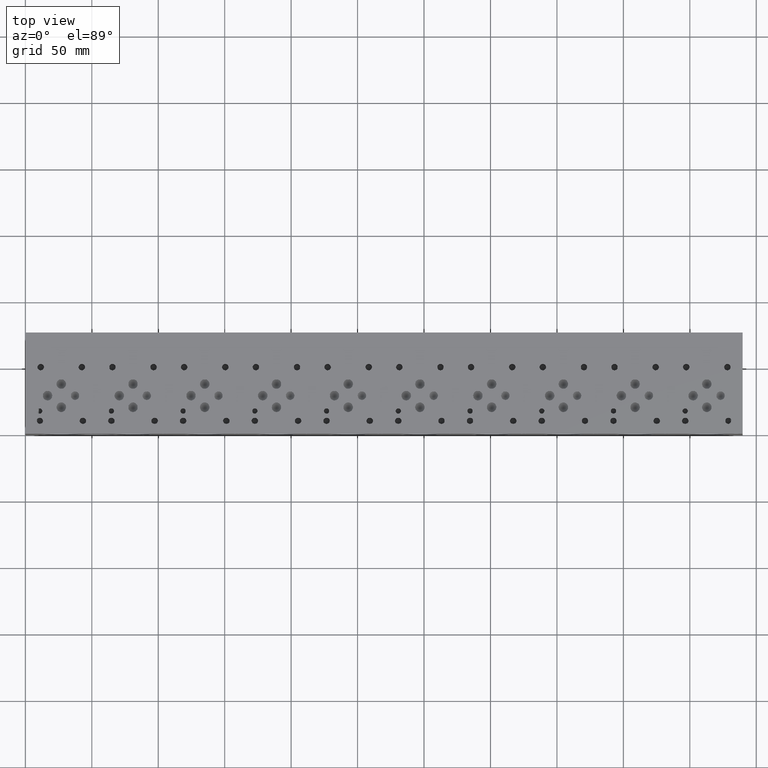
[diagram: clean part render]
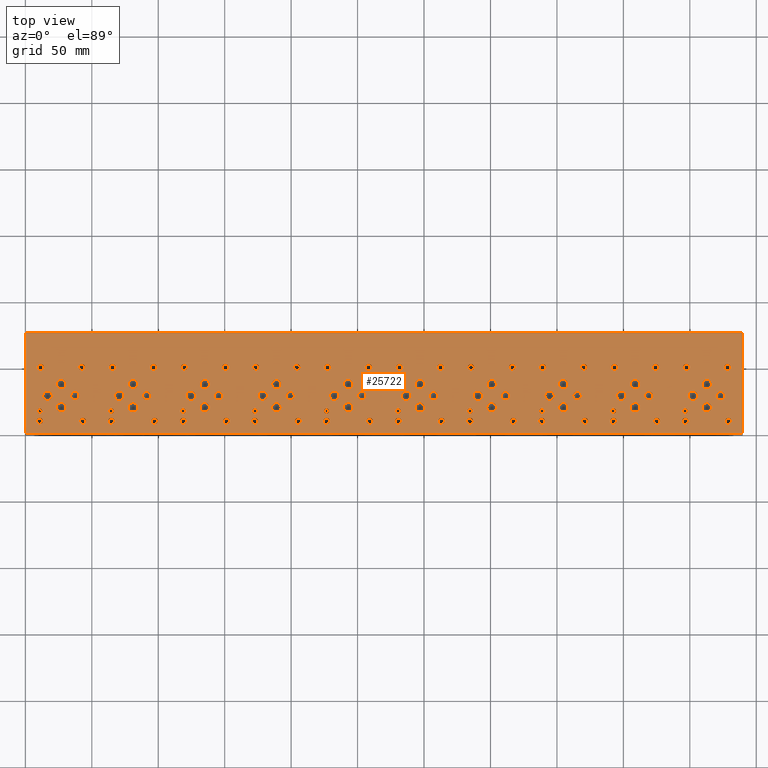
[diagram: same view with one face highlighted and labeled with its STEP entity id]
A machine part, top view. The second image highlights one B-rep face of the part: STEP entity #25722.
In plain terms, the highlighted planar face has unit normal (0, 0, 1).
Its self-contained STEP definition (entity closure, byte-faithful):
#719=CIRCLE('',#26615,3.175);
#720=CIRCLE('',#26616,3.175);
#723=CIRCLE('',#26621,3.175);
#724=CIRCLE('',#26622,3.175);
#727=CIRCLE('',#26627,3.175);
#728=CIRCLE('',#26628,3.175);
#731=CIRCLE('',#26633,3.175);
#732=CIRCLE('',#26634,3.175);
#735=CIRCLE('',#26639,3.175);
#736=CIRCLE('',#26640,3.175);
#739=CIRCLE('',#26645,3.175);
#740=CIRCLE('',#26646,3.175);
#743=CIRCLE('',#26651,3.175);
#744=CIRCLE('',#26652,3.175);
#747=CIRCLE('',#26657,3.175);
#748=CIRCLE('',#26658,3.175);
#751=CIRCLE('',#26663,3.175);
#752=CIRCLE('',#26664,3.175);
#755=CIRCLE('',#26669,3.175);
#756=CIRCLE('',#26670,3.175);
#759=CIRCLE('',#26675,3.5687);
#760=CIRCLE('',#26676,3.5687);
#763=CIRCLE('',#26681,3.5687);
#764=CIRCLE('',#26682,3.5687);
#767=CIRCLE('',#26687,3.5687);
#768=CIRCLE('',#26688,3.5687);
#771=CIRCLE('',#26693,3.5687);
#772=CIRCLE('',#26694,3.5687);
#775=CIRCLE('',#26699,3.5687);
#776=CIRCLE('',#26700,3.5687);
#779=CIRCLE('',#26705,3.5687);
#780=CIRCLE('',#26706,3.5687);
#783=CIRCLE('',#26711,3.5687);
#784=CIRCLE('',#26712,3.5687);
#787=CIRCLE('',#26717,3.5687);
#788=CIRCLE('',#26718,3.5687);
#791=CIRCLE('',#26723,3.5687);
#792=CIRCLE('',#26724,3.5687);
#795=CIRCLE('',#26729,3.5687);
#796=CIRCLE('',#26730,3.5687);
#799=CIRCLE('',#26735,3.5687);
#800=CIRCLE('',#26736,3.5687);
#803=CIRCLE('',#26741,3.5687);
#804=CIRCLE('',#26742,3.5687);
#807=CIRCLE('',#26747,3.5687);
#808=CIRCLE('',#26748,3.5687);
#811=CIRCLE('',#26753,3.5687);
#812=CIRCLE('',#26754,3.5687);
#815=CIRCLE('',#26759,3.5687);
#816=CIRCLE('',#26760,3.5687);
#819=CIRCLE('',#26765,3.5687);
#820=CIRCLE('',#26766,3.5687);
#823=CIRCLE('',#26771,3.5687);
#824=CIRCLE('',#26772,3.5687);
#827=CIRCLE('',#26777,3.5687);
#828=CIRCLE('',#26778,3.5687);
#831=CIRCLE('',#26783,3.5687);
#832=CIRCLE('',#26784,3.5687);
#835=CIRCLE('',#26789,3.5687);
#836=CIRCLE('',#26790,3.5687);
#839=CIRCLE('',#26795,3.5687);
#840=CIRCLE('',#26796,3.5687);
#843=CIRCLE('',#26801,3.5687);
#844=CIRCLE('',#26802,3.5687);
#847=CIRCLE('',#26807,3.5687);
#848=CIRCLE('',#26808,3.5687);
#851=CIRCLE('',#26813,3.5687);
#852=CIRCLE('',#26814,3.5687);
#855=CIRCLE('',#26819,3.5687);
#856=CIRCLE('',#26820,3.5687);
#859=CIRCLE('',#26825,3.5687);
#860=CIRCLE('',#26826,3.5687);
#863=CIRCLE('',#26831,3.5687);
#864=CIRCLE('',#26832,3.5687);
#867=CIRCLE('',#26837,3.5687);
#868=CIRCLE('',#26838,3.5687);
#871=CIRCLE('',#26843,3.5687);
#872=CIRCLE('',#26844,3.5687);
#875=CIRCLE('',#26849,3.5687);
#876=CIRCLE('',#26850,3.5687);
#879=CIRCLE('',#26855,1.9812);
#880=CIRCLE('',#26856,1.9812);
#883=CIRCLE('',#26861,1.9812);
#884=CIRCLE('',#26862,1.9812);
#887=CIRCLE('',#26867,1.9812);
#888=CIRCLE('',#26868,1.9812);
#891=CIRCLE('',#26873,1.9812);
#892=CIRCLE('',#26874,1.9812);
#895=CIRCLE('',#26879,1.9812);
#896=CIRCLE('',#26880,1.9812);
#899=CIRCLE('',#26885,1.9812);
#900=CIRCLE('',#26886,1.9812);
#903=CIRCLE('',#26891,1.9812);
#904=CIRCLE('',#26892,1.9812);
#907=CIRCLE('',#26897,1.9812);
#908=CIRCLE('',#26898,1.9812);
#911=CIRCLE('',#26903,1.9812);
#912=CIRCLE('',#26904,1.9812);
#915=CIRCLE('',#26909,1.9812);
#916=CIRCLE('',#26910,1.9812);
#922=CIRCLE('',#26919,2.413);
#923=CIRCLE('',#26920,2.413);
#929=CIRCLE('',#26930,2.413);
#930=CIRCLE('',#26931,2.413);
#936=CIRCLE('',#26941,2.413);
#937=CIRCLE('',#26942,2.413);
#943=CIRCLE('',#26952,2.413);
#944=CIRCLE('',#26953,2.413);
#950=CIRCLE('',#26963,2.413);
#951=CIRCLE('',#26964,2.413);
#957=CIRCLE('',#26974,2.413);
#958=CIRCLE('',#26975,2.413);
#964=CIRCLE('',#26985,2.413);
#965=CIRCLE('',#26986,2.413);
#971=CIRCLE('',#26996,2.413);
#972=CIRCLE('',#26997,2.413);
#978=CIRCLE('',#27007,2.413);
#979=CIRCLE('',#27008,2.413);
#985=CIRCLE('',#27018,2.413);
#986=CIRCLE('',#27019,2.413);
#992=CIRCLE('',#27029,2.413);
#993=CIRCLE('',#27030,2.413);
#999=CIRCLE('',#27040,2.413);
#1000=CIRCLE('',#27041,2.413);
#1006=CIRCLE('',#27051,2.413);
#1007=CIRCLE('',#27052,2.413);
#1013=CIRCLE('',#27062,2.413);
#1014=CIRCLE('',#27063,2.413);
#1020=CIRCLE('',#27073,2.413);
#1021=CIRCLE('',#27074,2.413);
#1027=CIRCLE('',#27084,2.413);
#1028=CIRCLE('',#27085,2.413);
#1034=CIRCLE('',#27095,2.413);
#1035=CIRCLE('',#27096,2.413);
#1041=CIRCLE('',#27106,2.413);
#1042=CIRCLE('',#27107,2.413);
#1048=CIRCLE('',#27117,2.413);
#1049=CIRCLE('',#27118,2.413);
#1055=CIRCLE('',#27128,2.413);
#1056=CIRCLE('',#27129,2.413);
#1062=CIRCLE('',#27139,2.413);
#1063=CIRCLE('',#27140,2.413);
#1069=CIRCLE('',#27150,2.413);
#1070=CIRCLE('',#27151,2.413);
#1076=CIRCLE('',#27161,2.413);
#1077=CIRCLE('',#27162,2.413);
#1083=CIRCLE('',#27172,2.413);
#1084=CIRCLE('',#27173,2.413);
#1090=CIRCLE('',#27183,2.413);
#1091=CIRCLE('',#27184,2.413);
#1097=CIRCLE('',#27194,2.413);
#1098=CIRCLE('',#27195,2.413);
#1104=CIRCLE('',#27205,2.413);
#1105=CIRCLE('',#27206,2.413);
#1111=CIRCLE('',#27216,2.413);
#1112=CIRCLE('',#27217,2.413);
#1118=CIRCLE('',#27227,2.413);
#1119=CIRCLE('',#27228,2.413);
#1125=CIRCLE('',#27238,2.413);
#1126=CIRCLE('',#27239,2.413);
#1132=CIRCLE('',#27249,2.413);
#1133=CIRCLE('',#27250,2.413);
#1139=CIRCLE('',#27260,2.413);
#1140=CIRCLE('',#27261,2.413);
#1146=CIRCLE('',#27271,2.413);
#1147=CIRCLE('',#27272,2.413);
#1153=CIRCLE('',#27282,2.413);
#1154=CIRCLE('',#27283,2.413);
#1160=CIRCLE('',#27293,2.413);
#1161=CIRCLE('',#27294,2.413);
#1167=CIRCLE('',#27304,2.413);
#1168=CIRCLE('',#27305,2.413);
#1174=CIRCLE('',#27315,2.413);
#1175=CIRCLE('',#27316,2.413);
#1181=CIRCLE('',#27326,2.413);
#1182=CIRCLE('',#27327,2.413);
#1188=CIRCLE('',#27337,2.413);
#1189=CIRCLE('',#27338,2.413);
#1195=CIRCLE('',#27348,2.413);
#1196=CIRCLE('',#27349,2.413);
#1671=FACE_BOUND('',#5472,.T.);
#1672=FACE_BOUND('',#5473,.T.);
#1673=FACE_BOUND('',#5474,.T.);
#1674=FACE_BOUND('',#5475,.T.);
#1675=FACE_BOUND('',#5476,.T.);
#1676=FACE_BOUND('',#5477,.T.);
#1677=FACE_BOUND('',#5478,.T.);
#1678=FACE_BOUND('',#5479,.T.);
#1679=FACE_BOUND('',#5480,.T.);
#1680=FACE_BOUND('',#5481,.T.);
#1681=FACE_BOUND('',#5482,.T.);
#1682=FACE_BOUND('',#5483,.T.);
#1683=FACE_BOUND('',#5484,.T.);
#1684=FACE_BOUND('',#5485,.T.);
#1685=FACE_BOUND('',#5486,.T.);
#1686=FACE_BOUND('',#5487,.T.);
#1687=FACE_BOUND('',#5488,.T.);
#1688=FACE_BOUND('',#5489,.T.);
#1689=FACE_BOUND('',#5490,.T.);
#1690=FACE_BOUND('',#5491,.T.);
#1691=FACE_BOUND('',#5492,.T.);
#1692=FACE_BOUND('',#5493,.T.);
#1693=FACE_BOUND('',#5494,.T.);
#1694=FACE_BOUND('',#5495,.T.);
#1695=FACE_BOUND('',#5496,.T.);
#1696=FACE_BOUND('',#5497,.T.);
#1697=FACE_BOUND('',#5498,.T.);
#1698=FACE_BOUND('',#5499,.T.);
#1699=FACE_BOUND('',#5500,.T.);
#1700=FACE_BOUND('',#5501,.T.);
#1701=FACE_BOUND('',#5502,.T.);
#1702=FACE_BOUND('',#5503,.T.);
#1703=FACE_BOUND('',#5504,.T.);
#1704=FACE_BOUND('',#5505,.T.);
#1705=FACE_BOUND('',#5506,.T.);
#1706=FACE_BOUND('',#5507,.T.);
#1707=FACE_BOUND('',#5508,.T.);
#1708=FACE_BOUND('',#5509,.T.);
#1709=FACE_BOUND('',#5510,.T.);
#1710=FACE_BOUND('',#5511,.T.);
#1711=FACE_BOUND('',#5512,.T.);
#1712=FACE_BOUND('',#5513,.T.);
#1713=FACE_BOUND('',#5514,.T.);
#1714=FACE_BOUND('',#5515,.T.);
#1715=FACE_BOUND('',#5516,.T.);
#1716=FACE_BOUND('',#5517,.T.);
#1717=FACE_BOUND('',#5518,.T.);
#1718=FACE_BOUND('',#5519,.T.);
#1719=FACE_BOUND('',#5520,.T.);
#1720=FACE_BOUND('',#5521,.T.);
#1721=FACE_BOUND('',#5522,.T.);
#1722=FACE_BOUND('',#5523,.T.);
#1723=FACE_BOUND('',#5524,.T.);
#1724=FACE_BOUND('',#5525,.T.);
#1725=FACE_BOUND('',#5526,.T.);
#1726=FACE_BOUND('',#5527,.T.);
#1727=FACE_BOUND('',#5528,.T.);
#1728=FACE_BOUND('',#5529,.T.);
#1729=FACE_BOUND('',#5530,.T.);
#1730=FACE_BOUND('',#5531,.T.);
#1731=FACE_BOUND('',#5532,.T.);
#1732=FACE_BOUND('',#5533,.T.);
#1733=FACE_BOUND('',#5534,.T.);
#1734=FACE_BOUND('',#5535,.T.);
#1735=FACE_BOUND('',#5536,.T.);
#1736=FACE_BOUND('',#5537,.T.);
#1737=FACE_BOUND('',#5538,.T.);
#1738=FACE_BOUND('',#5539,.T.);
#1739=FACE_BOUND('',#5540,.T.);
#1740=FACE_BOUND('',#5541,.T.);
#1741=FACE_BOUND('',#5542,.T.);
#1742=FACE_BOUND('',#5543,.T.);
#1743=FACE_BOUND('',#5544,.T.);
#1744=FACE_BOUND('',#5545,.T.);
#1745=FACE_BOUND('',#5546,.T.);
#1746=FACE_BOUND('',#5547,.T.);
#1747=FACE_BOUND('',#5548,.T.);
#1748=FACE_BOUND('',#5549,.T.);
#1749=FACE_BOUND('',#5550,.T.);
#1750=FACE_BOUND('',#5551,.T.);
#1751=FACE_BOUND('',#5552,.T.);
#1752=FACE_BOUND('',#5553,.T.);
#1753=FACE_BOUND('',#5554,.T.);
#1754=FACE_BOUND('',#5555,.T.);
#1755=FACE_BOUND('',#5556,.T.);
#1756=FACE_BOUND('',#5557,.T.);
#1757=FACE_BOUND('',#5558,.T.);
#1758=FACE_BOUND('',#5559,.T.);
#1759=FACE_BOUND('',#5560,.T.);
#1760=FACE_BOUND('',#5561,.T.);
#3909=FACE_OUTER_BOUND('',#5471,.T.);
#5471=EDGE_LOOP('',(#22801,#22802,#22803,#22804));
#5472=EDGE_LOOP('',(#22805,#22806));
#5473=EDGE_LOOP('',(#22807,#22808));
#5474=EDGE_LOOP('',(#22809,#22810));
#5475=EDGE_LOOP('',(#22811,#22812));
#5476=EDGE_LOOP('',(#22813,#22814));
#5477=EDGE_LOOP('',(#22815,#22816));
#5478=EDGE_LOOP('',(#22817,#22818));
#5479=EDGE_LOOP('',(#22819,#22820));
#5480=EDGE_LOOP('',(#22821,#22822));
#5481=EDGE_LOOP('',(#22823,#22824));
#5482=EDGE_LOOP('',(#22825,#22826));
#5483=EDGE_LOOP('',(#22827,#22828));
#5484=EDGE_LOOP('',(#22829,#22830));
#5485=EDGE_LOOP('',(#22831,#22832));
#5486=EDGE_LOOP('',(#22833,#22834));
#5487=EDGE_LOOP('',(#22835,#22836));
#5488=EDGE_LOOP('',(#22837,#22838));
#5489=EDGE_LOOP('',(#22839,#22840));
#5490=EDGE_LOOP('',(#22841,#22842));
#5491=EDGE_LOOP('',(#22843,#22844));
#5492=EDGE_LOOP('',(#22845,#22846));
#5493=EDGE_LOOP('',(#22847,#22848));
#5494=EDGE_LOOP('',(#22849,#22850));
#5495=EDGE_LOOP('',(#22851,#22852));
#5496=EDGE_LOOP('',(#22853,#22854));
#5497=EDGE_LOOP('',(#22855,#22856));
#5498=EDGE_LOOP('',(#22857,#22858));
#5499=EDGE_LOOP('',(#22859,#22860));
#5500=EDGE_LOOP('',(#22861,#22862));
#5501=EDGE_LOOP('',(#22863,#22864));
#5502=EDGE_LOOP('',(#22865,#22866));
#5503=EDGE_LOOP('',(#22867,#22868));
#5504=EDGE_LOOP('',(#22869,#22870));
#5505=EDGE_LOOP('',(#22871,#22872));
#5506=EDGE_LOOP('',(#22873,#22874));
#5507=EDGE_LOOP('',(#22875,#22876));
#5508=EDGE_LOOP('',(#22877,#22878));
#5509=EDGE_LOOP('',(#22879,#22880));
#5510=EDGE_LOOP('',(#22881,#22882));
#5511=EDGE_LOOP('',(#22883,#22884));
#5512=EDGE_LOOP('',(#22885,#22886));
#5513=EDGE_LOOP('',(#22887,#22888));
#5514=EDGE_LOOP('',(#22889,#22890));
#5515=EDGE_LOOP('',(#22891,#22892));
#5516=EDGE_LOOP('',(#22893,#22894));
#5517=EDGE_LOOP('',(#22895,#22896));
#5518=EDGE_LOOP('',(#22897,#22898));
#5519=EDGE_LOOP('',(#22899,#22900));
#5520=EDGE_LOOP('',(#22901,#22902));
#5521=EDGE_LOOP('',(#22903,#22904));
#5522=EDGE_LOOP('',(#22905,#22906));
#5523=EDGE_LOOP('',(#22907,#22908));
#5524=EDGE_LOOP('',(#22909,#22910));
#5525=EDGE_LOOP('',(#22911,#22912));
#5526=EDGE_LOOP('',(#22913,#22914));
#5527=EDGE_LOOP('',(#22915,#22916));
#5528=EDGE_LOOP('',(#22917,#22918));
#5529=EDGE_LOOP('',(#22919,#22920));
#5530=EDGE_LOOP('',(#22921,#22922));
#5531=EDGE_LOOP('',(#22923,#22924));
#5532=EDGE_LOOP('',(#22925,#22926));
#5533=EDGE_LOOP('',(#22927,#22928));
#5534=EDGE_LOOP('',(#22929,#22930));
#5535=EDGE_LOOP('',(#22931,#22932));
#5536=EDGE_LOOP('',(#22933,#22934));
#5537=EDGE_LOOP('',(#22935,#22936));
#5538=EDGE_LOOP('',(#22937,#22938));
#5539=EDGE_LOOP('',(#22939,#22940));
#5540=EDGE_LOOP('',(#22941,#22942));
#5541=EDGE_LOOP('',(#22943,#22944));
#5542=EDGE_LOOP('',(#22945,#22946));
#5543=EDGE_LOOP('',(#22947,#22948));
#5544=EDGE_LOOP('',(#22949,#22950));
#5545=EDGE_LOOP('',(#22951,#22952));
#5546=EDGE_LOOP('',(#22953,#22954));
#5547=EDGE_LOOP('',(#22955,#22956));
#5548=EDGE_LOOP('',(#22957,#22958));
#5549=EDGE_LOOP('',(#22959,#22960));
#5550=EDGE_LOOP('',(#22961,#22962));
#5551=EDGE_LOOP('',(#22963,#22964));
#5552=EDGE_LOOP('',(#22965,#22966));
#5553=EDGE_LOOP('',(#22967,#22968));
#5554=EDGE_LOOP('',(#22969,#22970));
#5555=EDGE_LOOP('',(#22971,#22972));
#5556=EDGE_LOOP('',(#22973,#22974));
#5557=EDGE_LOOP('',(#22975,#22976));
#5558=EDGE_LOOP('',(#22977,#22978));
#5559=EDGE_LOOP('',(#22979,#22980));
#5560=EDGE_LOOP('',(#22981,#22982));
#5561=EDGE_LOOP('',(#22983,#22984));
#5832=LINE('',#36070,#7901);
#7083=LINE('',#41614,#9152);
#7141=LINE('',#41885,#9210);
#7631=LINE('',#44952,#9700);
#7901=VECTOR('',#28226,10.);
#9152=VECTOR('',#30419,10.);
#9210=VECTOR('',#30531,10.);
#9700=VECTOR('',#34031,10.);
#9997=VERTEX_POINT('',#36067);
#9998=VERTEX_POINT('',#36069);
#11100=VERTEX_POINT('',#41612);
#11158=VERTEX_POINT('',#41884);
#11372=VERTEX_POINT('',#42518);
#11373=VERTEX_POINT('',#42519);
#11377=VERTEX_POINT('',#42531);
#11378=VERTEX_POINT('',#42532);
#11382=VERTEX_POINT('',#42544);
#11383=VERTEX_POINT('',#42545);
#11387=VERTEX_POINT('',#42557);
#11388=VERTEX_POINT('',#42558);
#11392=VERTEX_POINT('',#42570);
#11393=VERTEX_POINT('',#42571);
#11397=VERTEX_POINT('',#42583);
#11398=VERTEX_POINT('',#42584);
#11402=VERTEX_POINT('',#42596);
#11403=VERTEX_POINT('',#42597);
#11407=VERTEX_POINT('',#42609);
#11408=VERTEX_POINT('',#42610);
#11412=VERTEX_POINT('',#42622);
#11413=VERTEX_POINT('',#42623);
#11417=VERTEX_POINT('',#42635);
#11418=VERTEX_POINT('',#42636);
#11422=VERTEX_POINT('',#42648);
#11423=VERTEX_POINT('',#42649);
#11427=VERTEX_POINT('',#42661);
#11428=VERTEX_POINT('',#42662);
#11432=VERTEX_POINT('',#42674);
#11433=VERTEX_POINT('',#42675);
#11437=VERTEX_POINT('',#42687);
#11438=VERTEX_POINT('',#42688);
#11442=VERTEX_POINT('',#42700);
#11443=VERTEX_POINT('',#42701);
#11447=VERTEX_POINT('',#42713);
#11448=VERTEX_POINT('',#42714);
#11452=VERTEX_POINT('',#42726);
#11453=VERTEX_POINT('',#42727);
#11457=VERTEX_POINT('',#42739);
#11458=VERTEX_POINT('',#42740);
#11462=VERTEX_POINT('',#42752);
#11463=VERTEX_POINT('',#42753);
#11467=VERTEX_POINT('',#42765);
#11468=VERTEX_POINT('',#42766);
#11472=VERTEX_POINT('',#42778);
#11473=VERTEX_POINT('',#42779);
#11477=VERTEX_POINT('',#42791);
#11478=VERTEX_POINT('',#42792);
#11482=VERTEX_POINT('',#42804);
#11483=VERTEX_POINT('',#42805);
#11487=VERTEX_POINT('',#42817);
#11488=VERTEX_POINT('',#42818);
#11492=VERTEX_POINT('',#42830);
#11493=VERTEX_POINT('',#42831);
#11497=VERTEX_POINT('',#42843);
#11498=VERTEX_POINT('',#42844);
#11502=VERTEX_POINT('',#42856);
#11503=VERTEX_POINT('',#42857);
#11507=VERTEX_POINT('',#42869);
#11508=VERTEX_POINT('',#42870);
#11512=VERTEX_POINT('',#42882);
#11513=VERTEX_POINT('',#42883);
#11517=VERTEX_POINT('',#42895);
#11518=VERTEX_POINT('',#42896);
#11522=VERTEX_POINT('',#42908);
#11523=VERTEX_POINT('',#42909);
#11527=VERTEX_POINT('',#42921);
#11528=VERTEX_POINT('',#42922);
#11532=VERTEX_POINT('',#42934);
#11533=VERTEX_POINT('',#42935);
#11537=VERTEX_POINT('',#42947);
#11538=VERTEX_POINT('',#42948);
#11542=VERTEX_POINT('',#42960);
#11543=VERTEX_POINT('',#42961);
#11547=VERTEX_POINT('',#42973);
#11548=VERTEX_POINT('',#42974);
#11552=VERTEX_POINT('',#42986);
#11553=VERTEX_POINT('',#42987);
#11557=VERTEX_POINT('',#42999);
#11558=VERTEX_POINT('',#43000);
#11562=VERTEX_POINT('',#43012);
#11563=VERTEX_POINT('',#43013);
#11567=VERTEX_POINT('',#43025);
#11568=VERTEX_POINT('',#43026);
#11572=VERTEX_POINT('',#43038);
#11573=VERTEX_POINT('',#43039);
#11577=VERTEX_POINT('',#43051);
#11578=VERTEX_POINT('',#43052);
#11582=VERTEX_POINT('',#43064);
#11583=VERTEX_POINT('',#43065);
#11587=VERTEX_POINT('',#43077);
#11588=VERTEX_POINT('',#43078);
#11592=VERTEX_POINT('',#43090);
#11593=VERTEX_POINT('',#43091);
#11597=VERTEX_POINT('',#43103);
#11598=VERTEX_POINT('',#43104);
#11602=VERTEX_POINT('',#43116);
#11603=VERTEX_POINT('',#43117);
#11607=VERTEX_POINT('',#43129);
#11608=VERTEX_POINT('',#43130);
#11612=VERTEX_POINT('',#43142);
#11613=VERTEX_POINT('',#43143);
#11617=VERTEX_POINT('',#43155);
#11618=VERTEX_POINT('',#43156);
#11625=VERTEX_POINT('',#43175);
#11626=VERTEX_POINT('',#43176);
#11633=VERTEX_POINT('',#43197);
#11634=VERTEX_POINT('',#43198);
#11641=VERTEX_POINT('',#43219);
#11642=VERTEX_POINT('',#43220);
#11649=VERTEX_POINT('',#43241);
#11650=VERTEX_POINT('',#43242);
#11657=VERTEX_POINT('',#43263);
#11658=VERTEX_POINT('',#43264);
#11665=VERTEX_POINT('',#43285);
#11666=VERTEX_POINT('',#43286);
#11673=VERTEX_POINT('',#43307);
#11674=VERTEX_POINT('',#43308);
#11681=VERTEX_POINT('',#43329);
#11682=VERTEX_POINT('',#43330);
#11689=VERTEX_POINT('',#43351);
#11690=VERTEX_POINT('',#43352);
#11697=VERTEX_POINT('',#43373);
#11698=VERTEX_POINT('',#43374);
#11705=VERTEX_POINT('',#43395);
#11706=VERTEX_POINT('',#43396);
#11713=VERTEX_POINT('',#43417);
#11714=VERTEX_POINT('',#43418);
#11721=VERTEX_POINT('',#43439);
#11722=VERTEX_POINT('',#43440);
#11729=VERTEX_POINT('',#43461);
#11730=VERTEX_POINT('',#43462);
#11737=VERTEX_POINT('',#43483);
#11738=VERTEX_POINT('',#43484);
#11745=VERTEX_POINT('',#43505);
#11746=VERTEX_POINT('',#43506);
#11753=VERTEX_POINT('',#43527);
#11754=VERTEX_POINT('',#43528);
#11761=VERTEX_POINT('',#43549);
#11762=VERTEX_POINT('',#43550);
#11769=VERTEX_POINT('',#43571);
#11770=VERTEX_POINT('',#43572);
#11777=VERTEX_POINT('',#43593);
#11778=VERTEX_POINT('',#43594);
#11785=VERTEX_POINT('',#43615);
#11786=VERTEX_POINT('',#43616);
#11793=VERTEX_POINT('',#43637);
#11794=VERTEX_POINT('',#43638);
#11801=VERTEX_POINT('',#43659);
#11802=VERTEX_POINT('',#43660);
#11809=VERTEX_POINT('',#43681);
#11810=VERTEX_POINT('',#43682);
#11817=VERTEX_POINT('',#43703);
#11818=VERTEX_POINT('',#43704);
#11825=VERTEX_POINT('',#43725);
#11826=VERTEX_POINT('',#43726);
#11833=VERTEX_POINT('',#43747);
#11834=VERTEX_POINT('',#43748);
#11841=VERTEX_POINT('',#43769);
#11842=VERTEX_POINT('',#43770);
#11849=VERTEX_POINT('',#43791);
#11850=VERTEX_POINT('',#43792);
#11857=VERTEX_POINT('',#43813);
#11858=VERTEX_POINT('',#43814);
#11865=VERTEX_POINT('',#43835);
#11866=VERTEX_POINT('',#43836);
#11873=VERTEX_POINT('',#43857);
#11874=VERTEX_POINT('',#43858);
#11881=VERTEX_POINT('',#43879);
#11882=VERTEX_POINT('',#43880);
#11889=VERTEX_POINT('',#43901);
#11890=VERTEX_POINT('',#43902);
#11897=VERTEX_POINT('',#43923);
#11898=VERTEX_POINT('',#43924);
#11905=VERTEX_POINT('',#43945);
#11906=VERTEX_POINT('',#43946);
#11913=VERTEX_POINT('',#43967);
#11914=VERTEX_POINT('',#43968);
#11921=VERTEX_POINT('',#43989);
#11922=VERTEX_POINT('',#43990);
#11929=VERTEX_POINT('',#44011);
#11930=VERTEX_POINT('',#44012);
#11937=VERTEX_POINT('',#44033);
#11938=VERTEX_POINT('',#44034);
#12674=EDGE_CURVE('',#9998,#9997,#5832,.T.);
#14307=EDGE_CURVE('',#9997,#11100,#7083,.T.);
#14389=EDGE_CURVE('',#11158,#9998,#7141,.T.);
#14692=EDGE_CURVE('',#11372,#11373,#719,.T.);
#14693=EDGE_CURVE('',#11373,#11372,#720,.T.);
#14698=EDGE_CURVE('',#11377,#11378,#723,.T.);
#14699=EDGE_CURVE('',#11378,#11377,#724,.T.);
#14704=EDGE_CURVE('',#11382,#11383,#727,.T.);
#14705=EDGE_CURVE('',#11383,#11382,#728,.T.);
#14710=EDGE_CURVE('',#11387,#11388,#731,.T.);
#14711=EDGE_CURVE('',#11388,#11387,#732,.T.);
#14716=EDGE_CURVE('',#11392,#11393,#735,.T.);
#14717=EDGE_CURVE('',#11393,#11392,#736,.T.);
#14722=EDGE_CURVE('',#11397,#11398,#739,.T.);
#14723=EDGE_CURVE('',#11398,#11397,#740,.T.);
#14728=EDGE_CURVE('',#11402,#11403,#743,.T.);
#14729=EDGE_CURVE('',#11403,#11402,#744,.T.);
#14734=EDGE_CURVE('',#11407,#11408,#747,.T.);
#14735=EDGE_CURVE('',#11408,#11407,#748,.T.);
#14740=EDGE_CURVE('',#11412,#11413,#751,.T.);
#14741=EDGE_CURVE('',#11413,#11412,#752,.T.);
#14746=EDGE_CURVE('',#11417,#11418,#755,.T.);
#14747=EDGE_CURVE('',#11418,#11417,#756,.T.);
#14752=EDGE_CURVE('',#11422,#11423,#759,.T.);
#14753=EDGE_CURVE('',#11423,#11422,#760,.T.);
#14758=EDGE_CURVE('',#11427,#11428,#763,.T.);
#14759=EDGE_CURVE('',#11428,#11427,#764,.T.);
#14764=EDGE_CURVE('',#11432,#11433,#767,.T.);
#14765=EDGE_CURVE('',#11433,#11432,#768,.T.);
#14770=EDGE_CURVE('',#11437,#11438,#771,.T.);
#14771=EDGE_CURVE('',#11438,#11437,#772,.T.);
#14776=EDGE_CURVE('',#11442,#11443,#775,.T.);
#14777=EDGE_CURVE('',#11443,#11442,#776,.T.);
#14782=EDGE_CURVE('',#11447,#11448,#779,.T.);
#14783=EDGE_CURVE('',#11448,#11447,#780,.T.);
#14788=EDGE_CURVE('',#11452,#11453,#783,.T.);
#14789=EDGE_CURVE('',#11453,#11452,#784,.T.);
#14794=EDGE_CURVE('',#11457,#11458,#787,.T.);
#14795=EDGE_CURVE('',#11458,#11457,#788,.T.);
#14800=EDGE_CURVE('',#11462,#11463,#791,.T.);
#14801=EDGE_CURVE('',#11463,#11462,#792,.T.);
#14806=EDGE_CURVE('',#11467,#11468,#795,.T.);
#14807=EDGE_CURVE('',#11468,#11467,#796,.T.);
#14812=EDGE_CURVE('',#11472,#11473,#799,.T.);
#14813=EDGE_CURVE('',#11473,#11472,#800,.T.);
#14818=EDGE_CURVE('',#11477,#11478,#803,.T.);
#14819=EDGE_CURVE('',#11478,#11477,#804,.T.);
#14824=EDGE_CURVE('',#11482,#11483,#807,.T.);
#14825=EDGE_CURVE('',#11483,#11482,#808,.T.);
#14830=EDGE_CURVE('',#11487,#11488,#811,.T.);
#14831=EDGE_CURVE('',#11488,#11487,#812,.T.);
#14836=EDGE_CURVE('',#11492,#11493,#815,.T.);
#14837=EDGE_CURVE('',#11493,#11492,#816,.T.);
#14842=EDGE_CURVE('',#11497,#11498,#819,.T.);
#14843=EDGE_CURVE('',#11498,#11497,#820,.T.);
#14848=EDGE_CURVE('',#11502,#11503,#823,.T.);
#14849=EDGE_CURVE('',#11503,#11502,#824,.T.);
#14854=EDGE_CURVE('',#11507,#11508,#827,.T.);
#14855=EDGE_CURVE('',#11508,#11507,#828,.T.);
#14860=EDGE_CURVE('',#11512,#11513,#831,.T.);
#14861=EDGE_CURVE('',#11513,#11512,#832,.T.);
#14866=EDGE_CURVE('',#11517,#11518,#835,.T.);
#14867=EDGE_CURVE('',#11518,#11517,#836,.T.);
#14872=EDGE_CURVE('',#11522,#11523,#839,.T.);
#14873=EDGE_CURVE('',#11523,#11522,#840,.T.);
#14878=EDGE_CURVE('',#11527,#11528,#843,.T.);
#14879=EDGE_CURVE('',#11528,#11527,#844,.T.);
#14884=EDGE_CURVE('',#11532,#11533,#847,.T.);
#14885=EDGE_CURVE('',#11533,#11532,#848,.T.);
#14890=EDGE_CURVE('',#11537,#11538,#851,.T.);
#14891=EDGE_CURVE('',#11538,#11537,#852,.T.);
#14896=EDGE_CURVE('',#11542,#11543,#855,.T.);
#14897=EDGE_CURVE('',#11543,#11542,#856,.T.);
#14902=EDGE_CURVE('',#11547,#11548,#859,.T.);
#14903=EDGE_CURVE('',#11548,#11547,#860,.T.);
#14908=EDGE_CURVE('',#11552,#11553,#863,.T.);
#14909=EDGE_CURVE('',#11553,#11552,#864,.T.);
#14914=EDGE_CURVE('',#11557,#11558,#867,.T.);
#14915=EDGE_CURVE('',#11558,#11557,#868,.T.);
#14920=EDGE_CURVE('',#11562,#11563,#871,.T.);
#14921=EDGE_CURVE('',#11563,#11562,#872,.T.);
#14926=EDGE_CURVE('',#11567,#11568,#875,.T.);
#14927=EDGE_CURVE('',#11568,#11567,#876,.T.);
#14932=EDGE_CURVE('',#11572,#11573,#879,.T.);
#14933=EDGE_CURVE('',#11573,#11572,#880,.T.);
#14938=EDGE_CURVE('',#11577,#11578,#883,.T.);
#14939=EDGE_CURVE('',#11578,#11577,#884,.T.);
#14944=EDGE_CURVE('',#11582,#11583,#887,.T.);
#14945=EDGE_CURVE('',#11583,#11582,#888,.T.);
#14950=EDGE_CURVE('',#11587,#11588,#891,.T.);
#14951=EDGE_CURVE('',#11588,#11587,#892,.T.);
#14956=EDGE_CURVE('',#11592,#11593,#895,.T.);
#14957=EDGE_CURVE('',#11593,#11592,#896,.T.);
#14962=EDGE_CURVE('',#11597,#11598,#899,.T.);
#14963=EDGE_CURVE('',#11598,#11597,#900,.T.);
#14968=EDGE_CURVE('',#11602,#11603,#903,.T.);
#14969=EDGE_CURVE('',#11603,#11602,#904,.T.);
#14974=EDGE_CURVE('',#11607,#11608,#907,.T.);
#14975=EDGE_CURVE('',#11608,#11607,#908,.T.);
#14980=EDGE_CURVE('',#11612,#11613,#911,.T.);
#14981=EDGE_CURVE('',#11613,#11612,#912,.T.);
#14986=EDGE_CURVE('',#11617,#11618,#915,.T.);
#14987=EDGE_CURVE('',#11618,#11617,#916,.T.);
#14995=EDGE_CURVE('',#11625,#11626,#922,.T.);
#14996=EDGE_CURVE('',#11626,#11625,#923,.T.);
#15005=EDGE_CURVE('',#11633,#11634,#929,.T.);
#15006=EDGE_CURVE('',#11634,#11633,#930,.T.);
#15015=EDGE_CURVE('',#11641,#11642,#936,.T.);
#15016=EDGE_CURVE('',#11642,#11641,#937,.T.);
#15025=EDGE_CURVE('',#11649,#11650,#943,.T.);
#15026=EDGE_CURVE('',#11650,#11649,#944,.T.);
#15035=EDGE_CURVE('',#11657,#11658,#950,.T.);
#15036=EDGE_CURVE('',#11658,#11657,#951,.T.);
#15045=EDGE_CURVE('',#11665,#11666,#957,.T.);
#15046=EDGE_CURVE('',#11666,#11665,#958,.T.);
#15055=EDGE_CURVE('',#11673,#11674,#964,.T.);
#15056=EDGE_CURVE('',#11674,#11673,#965,.T.);
#15065=EDGE_CURVE('',#11681,#11682,#971,.T.);
#15066=EDGE_CURVE('',#11682,#11681,#972,.T.);
#15075=EDGE_CURVE('',#11689,#11690,#978,.T.);
#15076=EDGE_CURVE('',#11690,#11689,#979,.T.);
#15085=EDGE_CURVE('',#11697,#11698,#985,.T.);
#15086=EDGE_CURVE('',#11698,#11697,#986,.T.);
#15095=EDGE_CURVE('',#11705,#11706,#992,.T.);
#15096=EDGE_CURVE('',#11706,#11705,#993,.T.);
#15105=EDGE_CURVE('',#11713,#11714,#999,.T.);
#15106=EDGE_CURVE('',#11714,#11713,#1000,.T.);
#15115=EDGE_CURVE('',#11721,#11722,#1006,.T.);
#15116=EDGE_CURVE('',#11722,#11721,#1007,.T.);
#15125=EDGE_CURVE('',#11729,#11730,#1013,.T.);
#15126=EDGE_CURVE('',#11730,#11729,#1014,.T.);
#15135=EDGE_CURVE('',#11737,#11738,#1020,.T.);
#15136=EDGE_CURVE('',#11738,#11737,#1021,.T.);
#15145=EDGE_CURVE('',#11745,#11746,#1027,.T.);
#15146=EDGE_CURVE('',#11746,#11745,#1028,.T.);
#15155=EDGE_CURVE('',#11753,#11754,#1034,.T.);
#15156=EDGE_CURVE('',#11754,#11753,#1035,.T.);
#15165=EDGE_CURVE('',#11761,#11762,#1041,.T.);
#15166=EDGE_CURVE('',#11762,#11761,#1042,.T.);
#15175=EDGE_CURVE('',#11769,#11770,#1048,.T.);
#15176=EDGE_CURVE('',#11770,#11769,#1049,.T.);
#15185=EDGE_CURVE('',#11777,#11778,#1055,.T.);
#15186=EDGE_CURVE('',#11778,#11777,#1056,.T.);
#15195=EDGE_CURVE('',#11785,#11786,#1062,.T.);
#15196=EDGE_CURVE('',#11786,#11785,#1063,.T.);
#15205=EDGE_CURVE('',#11793,#11794,#1069,.T.);
#15206=EDGE_CURVE('',#11794,#11793,#1070,.T.);
#15215=EDGE_CURVE('',#11801,#11802,#1076,.T.);
#15216=EDGE_CURVE('',#11802,#11801,#1077,.T.);
#15225=EDGE_CURVE('',#11809,#11810,#1083,.T.);
#15226=EDGE_CURVE('',#11810,#11809,#1084,.T.);
#15235=EDGE_CURVE('',#11817,#11818,#1090,.T.);
#15236=EDGE_CURVE('',#11818,#11817,#1091,.T.);
#15245=EDGE_CURVE('',#11825,#11826,#1097,.T.);
#15246=EDGE_CURVE('',#11826,#11825,#1098,.T.);
#15255=EDGE_CURVE('',#11833,#11834,#1104,.T.);
#15256=EDGE_CURVE('',#11834,#11833,#1105,.T.);
#15265=EDGE_CURVE('',#11841,#11842,#1111,.T.);
#15266=EDGE_CURVE('',#11842,#11841,#1112,.T.);
#15275=EDGE_CURVE('',#11849,#11850,#1118,.T.);
#15276=EDGE_CURVE('',#11850,#11849,#1119,.T.);
#15285=EDGE_CURVE('',#11857,#11858,#1125,.T.);
#15286=EDGE_CURVE('',#11858,#11857,#1126,.T.);
#15295=EDGE_CURVE('',#11865,#11866,#1132,.T.);
#15296=EDGE_CURVE('',#11866,#11865,#1133,.T.);
#15305=EDGE_CURVE('',#11873,#11874,#1139,.T.);
#15306=EDGE_CURVE('',#11874,#11873,#1140,.T.);
#15315=EDGE_CURVE('',#11881,#11882,#1146,.T.);
#15316=EDGE_CURVE('',#11882,#11881,#1147,.T.);
#15325=EDGE_CURVE('',#11889,#11890,#1153,.T.);
#15326=EDGE_CURVE('',#11890,#11889,#1154,.T.);
#15335=EDGE_CURVE('',#11897,#11898,#1160,.T.);
#15336=EDGE_CURVE('',#11898,#11897,#1161,.T.);
#15345=EDGE_CURVE('',#11905,#11906,#1167,.T.);
#15346=EDGE_CURVE('',#11906,#11905,#1168,.T.);
#15355=EDGE_CURVE('',#11913,#11914,#1174,.T.);
#15356=EDGE_CURVE('',#11914,#11913,#1175,.T.);
#15365=EDGE_CURVE('',#11921,#11922,#1181,.T.);
#15366=EDGE_CURVE('',#11922,#11921,#1182,.T.);
#15375=EDGE_CURVE('',#11929,#11930,#1188,.T.);
#15376=EDGE_CURVE('',#11930,#11929,#1189,.T.);
#15385=EDGE_CURVE('',#11937,#11938,#1195,.T.);
#15386=EDGE_CURVE('',#11938,#11937,#1196,.T.);
#15816=EDGE_CURVE('',#11100,#11158,#7631,.T.);
#22801=ORIENTED_EDGE('',*,*,#12674,.T.);
#22802=ORIENTED_EDGE('',*,*,#14307,.T.);
#22803=ORIENTED_EDGE('',*,*,#15816,.T.);
#22804=ORIENTED_EDGE('',*,*,#14389,.T.);
#22805=ORIENTED_EDGE('',*,*,#14692,.T.);
#22806=ORIENTED_EDGE('',*,*,#14693,.T.);
#22807=ORIENTED_EDGE('',*,*,#14698,.T.);
#22808=ORIENTED_EDGE('',*,*,#14699,.T.);
#22809=ORIENTED_EDGE('',*,*,#14704,.T.);
#22810=ORIENTED_EDGE('',*,*,#14705,.T.);
#22811=ORIENTED_EDGE('',*,*,#14710,.T.);
#22812=ORIENTED_EDGE('',*,*,#14711,.T.);
#22813=ORIENTED_EDGE('',*,*,#14716,.T.);
#22814=ORIENTED_EDGE('',*,*,#14717,.T.);
#22815=ORIENTED_EDGE('',*,*,#14722,.T.);
#22816=ORIENTED_EDGE('',*,*,#14723,.T.);
#22817=ORIENTED_EDGE('',*,*,#14728,.T.);
#22818=ORIENTED_EDGE('',*,*,#14729,.T.);
#22819=ORIENTED_EDGE('',*,*,#14734,.T.);
#22820=ORIENTED_EDGE('',*,*,#14735,.T.);
#22821=ORIENTED_EDGE('',*,*,#14740,.T.);
#22822=ORIENTED_EDGE('',*,*,#14741,.T.);
#22823=ORIENTED_EDGE('',*,*,#14746,.T.);
#22824=ORIENTED_EDGE('',*,*,#14747,.T.);
#22825=ORIENTED_EDGE('',*,*,#14752,.T.);
#22826=ORIENTED_EDGE('',*,*,#14753,.T.);
#22827=ORIENTED_EDGE('',*,*,#14758,.T.);
#22828=ORIENTED_EDGE('',*,*,#14759,.T.);
#22829=ORIENTED_EDGE('',*,*,#14764,.T.);
#22830=ORIENTED_EDGE('',*,*,#14765,.T.);
#22831=ORIENTED_EDGE('',*,*,#14770,.T.);
#22832=ORIENTED_EDGE('',*,*,#14771,.T.);
#22833=ORIENTED_EDGE('',*,*,#14776,.T.);
#22834=ORIENTED_EDGE('',*,*,#14777,.T.);
#22835=ORIENTED_EDGE('',*,*,#14782,.T.);
#22836=ORIENTED_EDGE('',*,*,#14783,.T.);
#22837=ORIENTED_EDGE('',*,*,#14788,.T.);
#22838=ORIENTED_EDGE('',*,*,#14789,.T.);
#22839=ORIENTED_EDGE('',*,*,#14794,.T.);
#22840=ORIENTED_EDGE('',*,*,#14795,.T.);
#22841=ORIENTED_EDGE('',*,*,#14800,.T.);
#22842=ORIENTED_EDGE('',*,*,#14801,.T.);
#22843=ORIENTED_EDGE('',*,*,#14806,.T.);
#22844=ORIENTED_EDGE('',*,*,#14807,.T.);
#22845=ORIENTED_EDGE('',*,*,#14812,.T.);
#22846=ORIENTED_EDGE('',*,*,#14813,.T.);
#22847=ORIENTED_EDGE('',*,*,#14818,.T.);
#22848=ORIENTED_EDGE('',*,*,#14819,.T.);
#22849=ORIENTED_EDGE('',*,*,#14824,.T.);
#22850=ORIENTED_EDGE('',*,*,#14825,.T.);
#22851=ORIENTED_EDGE('',*,*,#14830,.T.);
#22852=ORIENTED_EDGE('',*,*,#14831,.T.);
#22853=ORIENTED_EDGE('',*,*,#14836,.T.);
#22854=ORIENTED_EDGE('',*,*,#14837,.T.);
#22855=ORIENTED_EDGE('',*,*,#14842,.T.);
#22856=ORIENTED_EDGE('',*,*,#14843,.T.);
#22857=ORIENTED_EDGE('',*,*,#14848,.T.);
#22858=ORIENTED_EDGE('',*,*,#14849,.T.);
#22859=ORIENTED_EDGE('',*,*,#14854,.T.);
#22860=ORIENTED_EDGE('',*,*,#14855,.T.);
#22861=ORIENTED_EDGE('',*,*,#14860,.T.);
#22862=ORIENTED_EDGE('',*,*,#14861,.T.);
#22863=ORIENTED_EDGE('',*,*,#14866,.T.);
#22864=ORIENTED_EDGE('',*,*,#14867,.T.);
#22865=ORIENTED_EDGE('',*,*,#14872,.T.);
#22866=ORIENTED_EDGE('',*,*,#14873,.T.);
#22867=ORIENTED_EDGE('',*,*,#14878,.T.);
#22868=ORIENTED_EDGE('',*,*,#14879,.T.);
#22869=ORIENTED_EDGE('',*,*,#14884,.T.);
#22870=ORIENTED_EDGE('',*,*,#14885,.T.);
#22871=ORIENTED_EDGE('',*,*,#14890,.T.);
#22872=ORIENTED_EDGE('',*,*,#14891,.T.);
#22873=ORIENTED_EDGE('',*,*,#14896,.T.);
#22874=ORIENTED_EDGE('',*,*,#14897,.T.);
#22875=ORIENTED_EDGE('',*,*,#14902,.T.);
#22876=ORIENTED_EDGE('',*,*,#14903,.T.);
#22877=ORIENTED_EDGE('',*,*,#14908,.T.);
#22878=ORIENTED_EDGE('',*,*,#14909,.T.);
#22879=ORIENTED_EDGE('',*,*,#14914,.T.);
#22880=ORIENTED_EDGE('',*,*,#14915,.T.);
#22881=ORIENTED_EDGE('',*,*,#14920,.T.);
#22882=ORIENTED_EDGE('',*,*,#14921,.T.);
#22883=ORIENTED_EDGE('',*,*,#14926,.T.);
#22884=ORIENTED_EDGE('',*,*,#14927,.T.);
#22885=ORIENTED_EDGE('',*,*,#14932,.T.);
#22886=ORIENTED_EDGE('',*,*,#14933,.T.);
#22887=ORIENTED_EDGE('',*,*,#14938,.T.);
#22888=ORIENTED_EDGE('',*,*,#14939,.T.);
#22889=ORIENTED_EDGE('',*,*,#14944,.T.);
#22890=ORIENTED_EDGE('',*,*,#14945,.T.);
#22891=ORIENTED_EDGE('',*,*,#14950,.T.);
#22892=ORIENTED_EDGE('',*,*,#14951,.T.);
#22893=ORIENTED_EDGE('',*,*,#14956,.T.);
#22894=ORIENTED_EDGE('',*,*,#14957,.T.);
#22895=ORIENTED_EDGE('',*,*,#14962,.T.);
#22896=ORIENTED_EDGE('',*,*,#14963,.T.);
#22897=ORIENTED_EDGE('',*,*,#14968,.T.);
#22898=ORIENTED_EDGE('',*,*,#14969,.T.);
#22899=ORIENTED_EDGE('',*,*,#14974,.T.);
#22900=ORIENTED_EDGE('',*,*,#14975,.T.);
#22901=ORIENTED_EDGE('',*,*,#14980,.T.);
#22902=ORIENTED_EDGE('',*,*,#14981,.T.);
#22903=ORIENTED_EDGE('',*,*,#14986,.T.);
#22904=ORIENTED_EDGE('',*,*,#14987,.T.);
#22905=ORIENTED_EDGE('',*,*,#14995,.T.);
#22906=ORIENTED_EDGE('',*,*,#14996,.T.);
#22907=ORIENTED_EDGE('',*,*,#15005,.T.);
#22908=ORIENTED_EDGE('',*,*,#15006,.T.);
#22909=ORIENTED_EDGE('',*,*,#15015,.T.);
#22910=ORIENTED_EDGE('',*,*,#15016,.T.);
#22911=ORIENTED_EDGE('',*,*,#15025,.T.);
#22912=ORIENTED_EDGE('',*,*,#15026,.T.);
#22913=ORIENTED_EDGE('',*,*,#15035,.T.);
#22914=ORIENTED_EDGE('',*,*,#15036,.T.);
#22915=ORIENTED_EDGE('',*,*,#15045,.T.);
#22916=ORIENTED_EDGE('',*,*,#15046,.T.);
#22917=ORIENTED_EDGE('',*,*,#15055,.T.);
#22918=ORIENTED_EDGE('',*,*,#15056,.T.);
#22919=ORIENTED_EDGE('',*,*,#15065,.T.);
#22920=ORIENTED_EDGE('',*,*,#15066,.T.);
#22921=ORIENTED_EDGE('',*,*,#15075,.T.);
#22922=ORIENTED_EDGE('',*,*,#15076,.T.);
#22923=ORIENTED_EDGE('',*,*,#15085,.T.);
#22924=ORIENTED_EDGE('',*,*,#15086,.T.);
#22925=ORIENTED_EDGE('',*,*,#15095,.T.);
#22926=ORIENTED_EDGE('',*,*,#15096,.T.);
#22927=ORIENTED_EDGE('',*,*,#15105,.T.);
#22928=ORIENTED_EDGE('',*,*,#15106,.T.);
#22929=ORIENTED_EDGE('',*,*,#15115,.T.);
#22930=ORIENTED_EDGE('',*,*,#15116,.T.);
#22931=ORIENTED_EDGE('',*,*,#15125,.T.);
#22932=ORIENTED_EDGE('',*,*,#15126,.T.);
#22933=ORIENTED_EDGE('',*,*,#15135,.T.);
#22934=ORIENTED_EDGE('',*,*,#15136,.T.);
#22935=ORIENTED_EDGE('',*,*,#15145,.T.);
#22936=ORIENTED_EDGE('',*,*,#15146,.T.);
#22937=ORIENTED_EDGE('',*,*,#15155,.T.);
#22938=ORIENTED_EDGE('',*,*,#15156,.T.);
#22939=ORIENTED_EDGE('',*,*,#15165,.T.);
#22940=ORIENTED_EDGE('',*,*,#15166,.T.);
#22941=ORIENTED_EDGE('',*,*,#15175,.T.);
#22942=ORIENTED_EDGE('',*,*,#15176,.T.);
#22943=ORIENTED_EDGE('',*,*,#15185,.T.);
#22944=ORIENTED_EDGE('',*,*,#15186,.T.);
#22945=ORIENTED_EDGE('',*,*,#15195,.T.);
#22946=ORIENTED_EDGE('',*,*,#15196,.T.);
#22947=ORIENTED_EDGE('',*,*,#15205,.T.);
#22948=ORIENTED_EDGE('',*,*,#15206,.T.);
#22949=ORIENTED_EDGE('',*,*,#15215,.T.);
#22950=ORIENTED_EDGE('',*,*,#15216,.T.);
#22951=ORIENTED_EDGE('',*,*,#15225,.T.);
#22952=ORIENTED_EDGE('',*,*,#15226,.T.);
#22953=ORIENTED_EDGE('',*,*,#15235,.T.);
#22954=ORIENTED_EDGE('',*,*,#15236,.T.);
#22955=ORIENTED_EDGE('',*,*,#15245,.T.);
#22956=ORIENTED_EDGE('',*,*,#15246,.T.);
#22957=ORIENTED_EDGE('',*,*,#15255,.T.);
#22958=ORIENTED_EDGE('',*,*,#15256,.T.);
#22959=ORIENTED_EDGE('',*,*,#15265,.T.);
#22960=ORIENTED_EDGE('',*,*,#15266,.T.);
#22961=ORIENTED_EDGE('',*,*,#15275,.T.);
#22962=ORIENTED_EDGE('',*,*,#15276,.T.);
#22963=ORIENTED_EDGE('',*,*,#15285,.T.);
#22964=ORIENTED_EDGE('',*,*,#15286,.T.);
#22965=ORIENTED_EDGE('',*,*,#15295,.T.);
#22966=ORIENTED_EDGE('',*,*,#15296,.T.);
#22967=ORIENTED_EDGE('',*,*,#15305,.T.);
#22968=ORIENTED_EDGE('',*,*,#15306,.T.);
#22969=ORIENTED_EDGE('',*,*,#15315,.T.);
#22970=ORIENTED_EDGE('',*,*,#15316,.T.);
#22971=ORIENTED_EDGE('',*,*,#15325,.T.);
#22972=ORIENTED_EDGE('',*,*,#15326,.T.);
#22973=ORIENTED_EDGE('',*,*,#15335,.T.);
#22974=ORIENTED_EDGE('',*,*,#15336,.T.);
#22975=ORIENTED_EDGE('',*,*,#15345,.T.);
#22976=ORIENTED_EDGE('',*,*,#15346,.T.);
#22977=ORIENTED_EDGE('',*,*,#15355,.T.);
#22978=ORIENTED_EDGE('',*,*,#15356,.T.);
#22979=ORIENTED_EDGE('',*,*,#15365,.T.);
#22980=ORIENTED_EDGE('',*,*,#15366,.T.);
#22981=ORIENTED_EDGE('',*,*,#15375,.T.);
#22982=ORIENTED_EDGE('',*,*,#15376,.T.);
#22983=ORIENTED_EDGE('',*,*,#15385,.T.);
#22984=ORIENTED_EDGE('',*,*,#15386,.T.);
#23614=PLANE('',#27813);
#25722=ADVANCED_FACE('',(#3909,#1671,#1672,#1673,#1674,#1675,#1676,#1677,
#1678,#1679,#1680,#1681,#1682,#1683,#1684,#1685,#1686,#1687,#1688,#1689,
#1690,#1691,#1692,#1693,#1694,#1695,#1696,#1697,#1698,#1699,#1700,#1701,
#1702,#1703,#1704,#1705,#1706,#1707,#1708,#1709,#1710,#1711,#1712,#1713,
#1714,#1715,#1716,#1717,#1718,#1719,#1720,#1721,#1722,#1723,#1724,#1725,
#1726,#1727,#1728,#1729,#1730,#1731,#1732,#1733,#1734,#1735,#1736,#1737,
#1738,#1739,#1740,#1741,#1742,#1743,#1744,#1745,#1746,#1747,#1748,#1749,
#1750,#1751,#1752,#1753,#1754,#1755,#1756,#1757,#1758,#1759,#1760),#23614,
 .T.);
#26615=AXIS2_PLACEMENT_3D('',#42520,#31260,#31261);
#26616=AXIS2_PLACEMENT_3D('',#42521,#31262,#31263);
#26621=AXIS2_PLACEMENT_3D('',#42533,#31274,#31275);
#26622=AXIS2_PLACEMENT_3D('',#42534,#31276,#31277);
#26627=AXIS2_PLACEMENT_3D('',#42546,#31288,#31289);
#26628=AXIS2_PLACEMENT_3D('',#42547,#31290,#31291);
#26633=AXIS2_PLACEMENT_3D('',#42559,#31302,#31303);
#26634=AXIS2_PLACEMENT_3D('',#42560,#31304,#31305);
#26639=AXIS2_PLACEMENT_3D('',#42572,#31316,#31317);
#26640=AXIS2_PLACEMENT_3D('',#42573,#31318,#31319);
#26645=AXIS2_PLACEMENT_3D('',#42585,#31330,#31331);
#26646=AXIS2_PLACEMENT_3D('',#42586,#31332,#31333);
#26651=AXIS2_PLACEMENT_3D('',#42598,#31344,#31345);
#26652=AXIS2_PLACEMENT_3D('',#42599,#31346,#31347);
#26657=AXIS2_PLACEMENT_3D('',#42611,#31358,#31359);
#26658=AXIS2_PLACEMENT_3D('',#42612,#31360,#31361);
#26663=AXIS2_PLACEMENT_3D('',#42624,#31372,#31373);
#26664=AXIS2_PLACEMENT_3D('',#42625,#31374,#31375);
#26669=AXIS2_PLACEMENT_3D('',#42637,#31386,#31387);
#26670=AXIS2_PLACEMENT_3D('',#42638,#31388,#31389);
#26675=AXIS2_PLACEMENT_3D('',#42650,#31400,#31401);
#26676=AXIS2_PLACEMENT_3D('',#42651,#31402,#31403);
#26681=AXIS2_PLACEMENT_3D('',#42663,#31414,#31415);
#26682=AXIS2_PLACEMENT_3D('',#42664,#31416,#31417);
#26687=AXIS2_PLACEMENT_3D('',#42676,#31428,#31429);
#26688=AXIS2_PLACEMENT_3D('',#42677,#31430,#31431);
#26693=AXIS2_PLACEMENT_3D('',#42689,#31442,#31443);
#26694=AXIS2_PLACEMENT_3D('',#42690,#31444,#31445);
#26699=AXIS2_PLACEMENT_3D('',#42702,#31456,#31457);
#26700=AXIS2_PLACEMENT_3D('',#42703,#31458,#31459);
#26705=AXIS2_PLACEMENT_3D('',#42715,#31470,#31471);
#26706=AXIS2_PLACEMENT_3D('',#42716,#31472,#31473);
#26711=AXIS2_PLACEMENT_3D('',#42728,#31484,#31485);
#26712=AXIS2_PLACEMENT_3D('',#42729,#31486,#31487);
#26717=AXIS2_PLACEMENT_3D('',#42741,#31498,#31499);
#26718=AXIS2_PLACEMENT_3D('',#42742,#31500,#31501);
#26723=AXIS2_PLACEMENT_3D('',#42754,#31512,#31513);
#26724=AXIS2_PLACEMENT_3D('',#42755,#31514,#31515);
#26729=AXIS2_PLACEMENT_3D('',#42767,#31526,#31527);
#26730=AXIS2_PLACEMENT_3D('',#42768,#31528,#31529);
#26735=AXIS2_PLACEMENT_3D('',#42780,#31540,#31541);
#26736=AXIS2_PLACEMENT_3D('',#42781,#31542,#31543);
#26741=AXIS2_PLACEMENT_3D('',#42793,#31554,#31555);
#26742=AXIS2_PLACEMENT_3D('',#42794,#31556,#31557);
#26747=AXIS2_PLACEMENT_3D('',#42806,#31568,#31569);
#26748=AXIS2_PLACEMENT_3D('',#42807,#31570,#31571);
#26753=AXIS2_PLACEMENT_3D('',#42819,#31582,#31583);
#26754=AXIS2_PLACEMENT_3D('',#42820,#31584,#31585);
#26759=AXIS2_PLACEMENT_3D('',#42832,#31596,#31597);
#26760=AXIS2_PLACEMENT_3D('',#42833,#31598,#31599);
#26765=AXIS2_PLACEMENT_3D('',#42845,#31610,#31611);
#26766=AXIS2_PLACEMENT_3D('',#42846,#31612,#31613);
#26771=AXIS2_PLACEMENT_3D('',#42858,#31624,#31625);
#26772=AXIS2_PLACEMENT_3D('',#42859,#31626,#31627);
#26777=AXIS2_PLACEMENT_3D('',#42871,#31638,#31639);
#26778=AXIS2_PLACEMENT_3D('',#42872,#31640,#31641);
#26783=AXIS2_PLACEMENT_3D('',#42884,#31652,#31653);
#26784=AXIS2_PLACEMENT_3D('',#42885,#31654,#31655);
#26789=AXIS2_PLACEMENT_3D('',#42897,#31666,#31667);
#26790=AXIS2_PLACEMENT_3D('',#42898,#31668,#31669);
#26795=AXIS2_PLACEMENT_3D('',#42910,#31680,#31681);
#26796=AXIS2_PLACEMENT_3D('',#42911,#31682,#31683);
#26801=AXIS2_PLACEMENT_3D('',#42923,#31694,#31695);
#26802=AXIS2_PLACEMENT_3D('',#42924,#31696,#31697);
#26807=AXIS2_PLACEMENT_3D('',#42936,#31708,#31709);
#26808=AXIS2_PLACEMENT_3D('',#42937,#31710,#31711);
#26813=AXIS2_PLACEMENT_3D('',#42949,#31722,#31723);
#26814=AXIS2_PLACEMENT_3D('',#42950,#31724,#31725);
#26819=AXIS2_PLACEMENT_3D('',#42962,#31736,#31737);
#26820=AXIS2_PLACEMENT_3D('',#42963,#31738,#31739);
#26825=AXIS2_PLACEMENT_3D('',#42975,#31750,#31751);
#26826=AXIS2_PLACEMENT_3D('',#42976,#31752,#31753);
#26831=AXIS2_PLACEMENT_3D('',#42988,#31764,#31765);
#26832=AXIS2_PLACEMENT_3D('',#42989,#31766,#31767);
#26837=AXIS2_PLACEMENT_3D('',#43001,#31778,#31779);
#26838=AXIS2_PLACEMENT_3D('',#43002,#31780,#31781);
#26843=AXIS2_PLACEMENT_3D('',#43014,#31792,#31793);
#26844=AXIS2_PLACEMENT_3D('',#43015,#31794,#31795);
#26849=AXIS2_PLACEMENT_3D('',#43027,#31806,#31807);
#26850=AXIS2_PLACEMENT_3D('',#43028,#31808,#31809);
#26855=AXIS2_PLACEMENT_3D('',#43040,#31820,#31821);
#26856=AXIS2_PLACEMENT_3D('',#43041,#31822,#31823);
#26861=AXIS2_PLACEMENT_3D('',#43053,#31834,#31835);
#26862=AXIS2_PLACEMENT_3D('',#43054,#31836,#31837);
#26867=AXIS2_PLACEMENT_3D('',#43066,#31848,#31849);
#26868=AXIS2_PLACEMENT_3D('',#43067,#31850,#31851);
#26873=AXIS2_PLACEMENT_3D('',#43079,#31862,#31863);
#26874=AXIS2_PLACEMENT_3D('',#43080,#31864,#31865);
#26879=AXIS2_PLACEMENT_3D('',#43092,#31876,#31877);
#26880=AXIS2_PLACEMENT_3D('',#43093,#31878,#31879);
#26885=AXIS2_PLACEMENT_3D('',#43105,#31890,#31891);
#26886=AXIS2_PLACEMENT_3D('',#43106,#31892,#31893);
#26891=AXIS2_PLACEMENT_3D('',#43118,#31904,#31905);
#26892=AXIS2_PLACEMENT_3D('',#43119,#31906,#31907);
#26897=AXIS2_PLACEMENT_3D('',#43131,#31918,#31919);
#26898=AXIS2_PLACEMENT_3D('',#43132,#31920,#31921);
#26903=AXIS2_PLACEMENT_3D('',#43144,#31932,#31933);
#26904=AXIS2_PLACEMENT_3D('',#43145,#31934,#31935);
#26909=AXIS2_PLACEMENT_3D('',#43157,#31946,#31947);
#26910=AXIS2_PLACEMENT_3D('',#43158,#31948,#31949);
#26919=AXIS2_PLACEMENT_3D('',#43177,#31968,#31969);
#26920=AXIS2_PLACEMENT_3D('',#43178,#31970,#31971);
#26930=AXIS2_PLACEMENT_3D('',#43199,#31993,#31994);
#26931=AXIS2_PLACEMENT_3D('',#43200,#31995,#31996);
#26941=AXIS2_PLACEMENT_3D('',#43221,#32018,#32019);
#26942=AXIS2_PLACEMENT_3D('',#43222,#32020,#32021);
#26952=AXIS2_PLACEMENT_3D('',#43243,#32043,#32044);
#26953=AXIS2_PLACEMENT_3D('',#43244,#32045,#32046);
#26963=AXIS2_PLACEMENT_3D('',#43265,#32068,#32069);
#26964=AXIS2_PLACEMENT_3D('',#43266,#32070,#32071);
#26974=AXIS2_PLACEMENT_3D('',#43287,#32093,#32094);
#26975=AXIS2_PLACEMENT_3D('',#43288,#32095,#32096);
#26985=AXIS2_PLACEMENT_3D('',#43309,#32118,#32119);
#26986=AXIS2_PLACEMENT_3D('',#43310,#32120,#32121);
#26996=AXIS2_PLACEMENT_3D('',#43331,#32143,#32144);
#26997=AXIS2_PLACEMENT_3D('',#43332,#32145,#32146);
#27007=AXIS2_PLACEMENT_3D('',#43353,#32168,#32169);
#27008=AXIS2_PLACEMENT_3D('',#43354,#32170,#32171);
#27018=AXIS2_PLACEMENT_3D('',#43375,#32193,#32194);
#27019=AXIS2_PLACEMENT_3D('',#43376,#32195,#32196);
#27029=AXIS2_PLACEMENT_3D('',#43397,#32218,#32219);
#27030=AXIS2_PLACEMENT_3D('',#43398,#32220,#32221);
#27040=AXIS2_PLACEMENT_3D('',#43419,#32243,#32244);
#27041=AXIS2_PLACEMENT_3D('',#43420,#32245,#32246);
#27051=AXIS2_PLACEMENT_3D('',#43441,#32268,#32269);
#27052=AXIS2_PLACEMENT_3D('',#43442,#32270,#32271);
#27062=AXIS2_PLACEMENT_3D('',#43463,#32293,#32294);
#27063=AXIS2_PLACEMENT_3D('',#43464,#32295,#32296);
#27073=AXIS2_PLACEMENT_3D('',#43485,#32318,#32319);
#27074=AXIS2_PLACEMENT_3D('',#43486,#32320,#32321);
#27084=AXIS2_PLACEMENT_3D('',#43507,#32343,#32344);
#27085=AXIS2_PLACEMENT_3D('',#43508,#32345,#32346);
#27095=AXIS2_PLACEMENT_3D('',#43529,#32368,#32369);
#27096=AXIS2_PLACEMENT_3D('',#43530,#32370,#32371);
#27106=AXIS2_PLACEMENT_3D('',#43551,#32393,#32394);
#27107=AXIS2_PLACEMENT_3D('',#43552,#32395,#32396);
#27117=AXIS2_PLACEMENT_3D('',#43573,#32418,#32419);
#27118=AXIS2_PLACEMENT_3D('',#43574,#32420,#32421);
#27128=AXIS2_PLACEMENT_3D('',#43595,#32443,#32444);
#27129=AXIS2_PLACEMENT_3D('',#43596,#32445,#32446);
#27139=AXIS2_PLACEMENT_3D('',#43617,#32468,#32469);
#27140=AXIS2_PLACEMENT_3D('',#43618,#32470,#32471);
#27150=AXIS2_PLACEMENT_3D('',#43639,#32493,#32494);
#27151=AXIS2_PLACEMENT_3D('',#43640,#32495,#32496);
#27161=AXIS2_PLACEMENT_3D('',#43661,#32518,#32519);
#27162=AXIS2_PLACEMENT_3D('',#43662,#32520,#32521);
#27172=AXIS2_PLACEMENT_3D('',#43683,#32543,#32544);
#27173=AXIS2_PLACEMENT_3D('',#43684,#32545,#32546);
#27183=AXIS2_PLACEMENT_3D('',#43705,#32568,#32569);
#27184=AXIS2_PLACEMENT_3D('',#43706,#32570,#32571);
#27194=AXIS2_PLACEMENT_3D('',#43727,#32593,#32594);
#27195=AXIS2_PLACEMENT_3D('',#43728,#32595,#32596);
#27205=AXIS2_PLACEMENT_3D('',#43749,#32618,#32619);
#27206=AXIS2_PLACEMENT_3D('',#43750,#32620,#32621);
#27216=AXIS2_PLACEMENT_3D('',#43771,#32643,#32644);
#27217=AXIS2_PLACEMENT_3D('',#43772,#32645,#32646);
#27227=AXIS2_PLACEMENT_3D('',#43793,#32668,#32669);
#27228=AXIS2_PLACEMENT_3D('',#43794,#32670,#32671);
#27238=AXIS2_PLACEMENT_3D('',#43815,#32693,#32694);
#27239=AXIS2_PLACEMENT_3D('',#43816,#32695,#32696);
#27249=AXIS2_PLACEMENT_3D('',#43837,#32718,#32719);
#27250=AXIS2_PLACEMENT_3D('',#43838,#32720,#32721);
#27260=AXIS2_PLACEMENT_3D('',#43859,#32743,#32744);
#27261=AXIS2_PLACEMENT_3D('',#43860,#32745,#32746);
#27271=AXIS2_PLACEMENT_3D('',#43881,#32768,#32769);
#27272=AXIS2_PLACEMENT_3D('',#43882,#32770,#32771);
#27282=AXIS2_PLACEMENT_3D('',#43903,#32793,#32794);
#27283=AXIS2_PLACEMENT_3D('',#43904,#32795,#32796);
#27293=AXIS2_PLACEMENT_3D('',#43925,#32818,#32819);
#27294=AXIS2_PLACEMENT_3D('',#43926,#32820,#32821);
#27304=AXIS2_PLACEMENT_3D('',#43947,#32843,#32844);
#27305=AXIS2_PLACEMENT_3D('',#43948,#32845,#32846);
#27315=AXIS2_PLACEMENT_3D('',#43969,#32868,#32869);
#27316=AXIS2_PLACEMENT_3D('',#43970,#32870,#32871);
#27326=AXIS2_PLACEMENT_3D('',#43991,#32893,#32894);
#27327=AXIS2_PLACEMENT_3D('',#43992,#32895,#32896);
#27337=AXIS2_PLACEMENT_3D('',#44013,#32918,#32919);
#27338=AXIS2_PLACEMENT_3D('',#44014,#32920,#32921);
#27348=AXIS2_PLACEMENT_3D('',#44035,#32943,#32944);
#27349=AXIS2_PLACEMENT_3D('',#44036,#32945,#32946);
#27813=AXIS2_PLACEMENT_3D('',#44955,#34036,#34037);
#28226=DIRECTION('',(1.,0.,0.));
#30419=DIRECTION('',(0.,1.,0.));
#30531=DIRECTION('',(0.,-1.,0.));
#31260=DIRECTION('center_axis',(0.,0.,-1.));
#31261=DIRECTION('ref_axis',(1.,0.,0.));
#31262=DIRECTION('center_axis',(0.,0.,-1.));
#31263=DIRECTION('ref_axis',(1.,0.,0.));
#31274=DIRECTION('center_axis',(0.,0.,-1.));
#31275=DIRECTION('ref_axis',(1.,0.,0.));
#31276=DIRECTION('center_axis',(0.,0.,-1.));
#31277=DIRECTION('ref_axis',(1.,0.,0.));
#31288=DIRECTION('center_axis',(0.,0.,-1.));
#31289=DIRECTION('ref_axis',(1.,0.,0.));
#31290=DIRECTION('center_axis',(0.,0.,-1.));
#31291=DIRECTION('ref_axis',(1.,0.,0.));
#31302=DIRECTION('center_axis',(0.,0.,-1.));
#31303=DIRECTION('ref_axis',(1.,0.,0.));
#31304=DIRECTION('center_axis',(0.,0.,-1.));
#31305=DIRECTION('ref_axis',(1.,0.,0.));
#31316=DIRECTION('center_axis',(0.,0.,-1.));
#31317=DIRECTION('ref_axis',(1.,0.,0.));
#31318=DIRECTION('center_axis',(0.,0.,-1.));
#31319=DIRECTION('ref_axis',(1.,0.,0.));
#31330=DIRECTION('center_axis',(0.,0.,-1.));
#31331=DIRECTION('ref_axis',(1.,0.,0.));
#31332=DIRECTION('center_axis',(0.,0.,-1.));
#31333=DIRECTION('ref_axis',(1.,0.,0.));
#31344=DIRECTION('center_axis',(0.,0.,-1.));
#31345=DIRECTION('ref_axis',(1.,0.,0.));
#31346=DIRECTION('center_axis',(0.,0.,-1.));
#31347=DIRECTION('ref_axis',(1.,0.,0.));
#31358=DIRECTION('center_axis',(0.,0.,-1.));
#31359=DIRECTION('ref_axis',(1.,0.,0.));
#31360=DIRECTION('center_axis',(0.,0.,-1.));
#31361=DIRECTION('ref_axis',(1.,0.,0.));
#31372=DIRECTION('center_axis',(0.,0.,-1.));
#31373=DIRECTION('ref_axis',(1.,0.,0.));
#31374=DIRECTION('center_axis',(0.,0.,-1.));
#31375=DIRECTION('ref_axis',(1.,0.,0.));
#31386=DIRECTION('center_axis',(0.,0.,-1.));
#31387=DIRECTION('ref_axis',(1.,0.,0.));
#31388=DIRECTION('center_axis',(0.,0.,-1.));
#31389=DIRECTION('ref_axis',(1.,0.,0.));
#31400=DIRECTION('center_axis',(0.,0.,-1.));
#31401=DIRECTION('ref_axis',(1.,0.,0.));
#31402=DIRECTION('center_axis',(0.,0.,-1.));
#31403=DIRECTION('ref_axis',(1.,0.,0.));
#31414=DIRECTION('center_axis',(0.,0.,-1.));
#31415=DIRECTION('ref_axis',(1.,0.,0.));
#31416=DIRECTION('center_axis',(0.,0.,-1.));
#31417=DIRECTION('ref_axis',(1.,0.,0.));
#31428=DIRECTION('center_axis',(0.,0.,-1.));
#31429=DIRECTION('ref_axis',(1.,0.,0.));
#31430=DIRECTION('center_axis',(0.,0.,-1.));
#31431=DIRECTION('ref_axis',(1.,0.,0.));
#31442=DIRECTION('center_axis',(0.,0.,-1.));
#31443=DIRECTION('ref_axis',(1.,0.,0.));
#31444=DIRECTION('center_axis',(0.,0.,-1.));
#31445=DIRECTION('ref_axis',(1.,0.,0.));
#31456=DIRECTION('center_axis',(0.,0.,-1.));
#31457=DIRECTION('ref_axis',(1.,0.,0.));
#31458=DIRECTION('center_axis',(0.,0.,-1.));
#31459=DIRECTION('ref_axis',(1.,0.,0.));
#31470=DIRECTION('center_axis',(0.,0.,-1.));
#31471=DIRECTION('ref_axis',(1.,0.,0.));
#31472=DIRECTION('center_axis',(0.,0.,-1.));
#31473=DIRECTION('ref_axis',(1.,0.,0.));
#31484=DIRECTION('center_axis',(0.,0.,-1.));
#31485=DIRECTION('ref_axis',(1.,0.,0.));
#31486=DIRECTION('center_axis',(0.,0.,-1.));
#31487=DIRECTION('ref_axis',(1.,0.,0.));
#31498=DIRECTION('center_axis',(0.,0.,-1.));
#31499=DIRECTION('ref_axis',(1.,0.,0.));
#31500=DIRECTION('center_axis',(0.,0.,-1.));
#31501=DIRECTION('ref_axis',(1.,0.,0.));
#31512=DIRECTION('center_axis',(0.,0.,-1.));
#31513=DIRECTION('ref_axis',(1.,0.,0.));
#31514=DIRECTION('center_axis',(0.,0.,-1.));
#31515=DIRECTION('ref_axis',(1.,0.,0.));
#31526=DIRECTION('center_axis',(0.,0.,-1.));
#31527=DIRECTION('ref_axis',(1.,0.,0.));
#31528=DIRECTION('center_axis',(0.,0.,-1.));
#31529=DIRECTION('ref_axis',(1.,0.,0.));
#31540=DIRECTION('center_axis',(0.,0.,-1.));
#31541=DIRECTION('ref_axis',(1.,0.,0.));
#31542=DIRECTION('center_axis',(0.,0.,-1.));
#31543=DIRECTION('ref_axis',(1.,0.,0.));
#31554=DIRECTION('center_axis',(0.,0.,-1.));
#31555=DIRECTION('ref_axis',(1.,0.,0.));
#31556=DIRECTION('center_axis',(0.,0.,-1.));
#31557=DIRECTION('ref_axis',(1.,0.,0.));
#31568=DIRECTION('center_axis',(0.,0.,-1.));
#31569=DIRECTION('ref_axis',(1.,0.,0.));
#31570=DIRECTION('center_axis',(0.,0.,-1.));
#31571=DIRECTION('ref_axis',(1.,0.,0.));
#31582=DIRECTION('center_axis',(0.,0.,-1.));
#31583=DIRECTION('ref_axis',(1.,0.,0.));
#31584=DIRECTION('center_axis',(0.,0.,-1.));
#31585=DIRECTION('ref_axis',(1.,0.,0.));
#31596=DIRECTION('center_axis',(0.,0.,-1.));
#31597=DIRECTION('ref_axis',(1.,0.,0.));
#31598=DIRECTION('center_axis',(0.,0.,-1.));
#31599=DIRECTION('ref_axis',(1.,0.,0.));
#31610=DIRECTION('center_axis',(0.,0.,-1.));
#31611=DIRECTION('ref_axis',(1.,0.,0.));
#31612=DIRECTION('center_axis',(0.,0.,-1.));
#31613=DIRECTION('ref_axis',(1.,0.,0.));
#31624=DIRECTION('center_axis',(0.,0.,-1.));
#31625=DIRECTION('ref_axis',(1.,0.,0.));
#31626=DIRECTION('center_axis',(0.,0.,-1.));
#31627=DIRECTION('ref_axis',(1.,0.,0.));
#31638=DIRECTION('center_axis',(0.,0.,-1.));
#31639=DIRECTION('ref_axis',(1.,0.,0.));
#31640=DIRECTION('center_axis',(0.,0.,-1.));
#31641=DIRECTION('ref_axis',(1.,0.,0.));
#31652=DIRECTION('center_axis',(0.,0.,-1.));
#31653=DIRECTION('ref_axis',(1.,0.,0.));
#31654=DIRECTION('center_axis',(0.,0.,-1.));
#31655=DIRECTION('ref_axis',(1.,0.,0.));
#31666=DIRECTION('center_axis',(0.,0.,-1.));
#31667=DIRECTION('ref_axis',(1.,0.,0.));
#31668=DIRECTION('center_axis',(0.,0.,-1.));
#31669=DIRECTION('ref_axis',(1.,0.,0.));
#31680=DIRECTION('center_axis',(0.,0.,-1.));
#31681=DIRECTION('ref_axis',(1.,0.,0.));
#31682=DIRECTION('center_axis',(0.,0.,-1.));
#31683=DIRECTION('ref_axis',(1.,0.,0.));
#31694=DIRECTION('center_axis',(0.,0.,-1.));
#31695=DIRECTION('ref_axis',(1.,0.,0.));
#31696=DIRECTION('center_axis',(0.,0.,-1.));
#31697=DIRECTION('ref_axis',(1.,0.,0.));
#31708=DIRECTION('center_axis',(0.,0.,-1.));
#31709=DIRECTION('ref_axis',(1.,0.,0.));
#31710=DIRECTION('center_axis',(0.,0.,-1.));
#31711=DIRECTION('ref_axis',(1.,0.,0.));
#31722=DIRECTION('center_axis',(0.,0.,-1.));
#31723=DIRECTION('ref_axis',(1.,0.,0.));
#31724=DIRECTION('center_axis',(0.,0.,-1.));
#31725=DIRECTION('ref_axis',(1.,0.,0.));
#31736=DIRECTION('center_axis',(0.,0.,-1.));
#31737=DIRECTION('ref_axis',(1.,0.,0.));
#31738=DIRECTION('center_axis',(0.,0.,-1.));
#31739=DIRECTION('ref_axis',(1.,0.,0.));
#31750=DIRECTION('center_axis',(0.,0.,-1.));
#31751=DIRECTION('ref_axis',(1.,0.,0.));
#31752=DIRECTION('center_axis',(0.,0.,-1.));
#31753=DIRECTION('ref_axis',(1.,0.,0.));
#31764=DIRECTION('center_axis',(0.,0.,-1.));
#31765=DIRECTION('ref_axis',(1.,0.,0.));
#31766=DIRECTION('center_axis',(0.,0.,-1.));
#31767=DIRECTION('ref_axis',(1.,0.,0.));
#31778=DIRECTION('center_axis',(0.,0.,-1.));
#31779=DIRECTION('ref_axis',(1.,0.,0.));
#31780=DIRECTION('center_axis',(0.,0.,-1.));
#31781=DIRECTION('ref_axis',(1.,0.,0.));
#31792=DIRECTION('center_axis',(0.,0.,-1.));
#31793=DIRECTION('ref_axis',(1.,0.,0.));
#31794=DIRECTION('center_axis',(0.,0.,-1.));
#31795=DIRECTION('ref_axis',(1.,0.,0.));
#31806=DIRECTION('center_axis',(0.,0.,-1.));
#31807=DIRECTION('ref_axis',(1.,0.,0.));
#31808=DIRECTION('center_axis',(0.,0.,-1.));
#31809=DIRECTION('ref_axis',(1.,0.,0.));
#31820=DIRECTION('center_axis',(0.,0.,-1.));
#31821=DIRECTION('ref_axis',(1.,0.,0.));
#31822=DIRECTION('center_axis',(0.,0.,-1.));
#31823=DIRECTION('ref_axis',(1.,0.,0.));
#31834=DIRECTION('center_axis',(0.,0.,-1.));
#31835=DIRECTION('ref_axis',(1.,0.,0.));
#31836=DIRECTION('center_axis',(0.,0.,-1.));
#31837=DIRECTION('ref_axis',(1.,0.,0.));
#31848=DIRECTION('center_axis',(0.,0.,-1.));
#31849=DIRECTION('ref_axis',(1.,0.,0.));
#31850=DIRECTION('center_axis',(0.,0.,-1.));
#31851=DIRECTION('ref_axis',(1.,0.,0.));
#31862=DIRECTION('center_axis',(0.,0.,-1.));
#31863=DIRECTION('ref_axis',(1.,0.,0.));
#31864=DIRECTION('center_axis',(0.,0.,-1.));
#31865=DIRECTION('ref_axis',(1.,0.,0.));
#31876=DIRECTION('center_axis',(0.,0.,-1.));
#31877=DIRECTION('ref_axis',(1.,0.,0.));
#31878=DIRECTION('center_axis',(0.,0.,-1.));
#31879=DIRECTION('ref_axis',(1.,0.,0.));
#31890=DIRECTION('center_axis',(0.,0.,-1.));
#31891=DIRECTION('ref_axis',(1.,0.,0.));
#31892=DIRECTION('center_axis',(0.,0.,-1.));
#31893=DIRECTION('ref_axis',(1.,0.,0.));
#31904=DIRECTION('center_axis',(0.,0.,-1.));
#31905=DIRECTION('ref_axis',(1.,0.,0.));
#31906=DIRECTION('center_axis',(0.,0.,-1.));
#31907=DIRECTION('ref_axis',(1.,0.,0.));
#31918=DIRECTION('center_axis',(0.,0.,-1.));
#31919=DIRECTION('ref_axis',(1.,0.,0.));
#31920=DIRECTION('center_axis',(0.,0.,-1.));
#31921=DIRECTION('ref_axis',(1.,0.,0.));
#31932=DIRECTION('center_axis',(0.,0.,-1.));
#31933=DIRECTION('ref_axis',(1.,0.,0.));
#31934=DIRECTION('center_axis',(0.,0.,-1.));
#31935=DIRECTION('ref_axis',(1.,0.,0.));
#31946=DIRECTION('center_axis',(0.,0.,-1.));
#31947=DIRECTION('ref_axis',(1.,0.,0.));
#31948=DIRECTION('center_axis',(0.,0.,-1.));
#31949=DIRECTION('ref_axis',(1.,0.,0.));
#31968=DIRECTION('center_axis',(0.,0.,-1.));
#31969=DIRECTION('ref_axis',(1.,0.,0.));
#31970=DIRECTION('center_axis',(0.,0.,-1.));
#31971=DIRECTION('ref_axis',(1.,0.,0.));
#31993=DIRECTION('center_axis',(0.,0.,-1.));
#31994=DIRECTION('ref_axis',(1.,0.,0.));
#31995=DIRECTION('center_axis',(0.,0.,-1.));
#31996=DIRECTION('ref_axis',(1.,0.,0.));
#32018=DIRECTION('center_axis',(0.,0.,-1.));
#32019=DIRECTION('ref_axis',(1.,0.,0.));
#32020=DIRECTION('center_axis',(0.,0.,-1.));
#32021=DIRECTION('ref_axis',(1.,0.,0.));
#32043=DIRECTION('center_axis',(0.,0.,-1.));
#32044=DIRECTION('ref_axis',(1.,0.,0.));
#32045=DIRECTION('center_axis',(0.,0.,-1.));
#32046=DIRECTION('ref_axis',(1.,0.,0.));
#32068=DIRECTION('center_axis',(0.,0.,-1.));
#32069=DIRECTION('ref_axis',(1.,0.,0.));
#32070=DIRECTION('center_axis',(0.,0.,-1.));
#32071=DIRECTION('ref_axis',(1.,0.,0.));
#32093=DIRECTION('center_axis',(0.,0.,-1.));
#32094=DIRECTION('ref_axis',(1.,0.,0.));
#32095=DIRECTION('center_axis',(0.,0.,-1.));
#32096=DIRECTION('ref_axis',(1.,0.,0.));
#32118=DIRECTION('center_axis',(0.,0.,-1.));
#32119=DIRECTION('ref_axis',(1.,0.,0.));
#32120=DIRECTION('center_axis',(0.,0.,-1.));
#32121=DIRECTION('ref_axis',(1.,0.,0.));
#32143=DIRECTION('center_axis',(0.,0.,-1.));
#32144=DIRECTION('ref_axis',(1.,0.,0.));
#32145=DIRECTION('center_axis',(0.,0.,-1.));
#32146=DIRECTION('ref_axis',(1.,0.,0.));
#32168=DIRECTION('center_axis',(0.,0.,-1.));
#32169=DIRECTION('ref_axis',(1.,0.,0.));
#32170=DIRECTION('center_axis',(0.,0.,-1.));
#32171=DIRECTION('ref_axis',(1.,0.,0.));
#32193=DIRECTION('center_axis',(0.,0.,-1.));
#32194=DIRECTION('ref_axis',(1.,0.,0.));
#32195=DIRECTION('center_axis',(0.,0.,-1.));
#32196=DIRECTION('ref_axis',(1.,0.,0.));
#32218=DIRECTION('center_axis',(0.,0.,-1.));
#32219=DIRECTION('ref_axis',(1.,0.,0.));
#32220=DIRECTION('center_axis',(0.,0.,-1.));
#32221=DIRECTION('ref_axis',(1.,0.,0.));
#32243=DIRECTION('center_axis',(0.,0.,-1.));
#32244=DIRECTION('ref_axis',(1.,0.,0.));
#32245=DIRECTION('center_axis',(0.,0.,-1.));
#32246=DIRECTION('ref_axis',(1.,0.,0.));
#32268=DIRECTION('center_axis',(0.,0.,-1.));
#32269=DIRECTION('ref_axis',(1.,0.,0.));
#32270=DIRECTION('center_axis',(0.,0.,-1.));
#32271=DIRECTION('ref_axis',(1.,0.,0.));
#32293=DIRECTION('center_axis',(0.,0.,-1.));
#32294=DIRECTION('ref_axis',(1.,0.,0.));
#32295=DIRECTION('center_axis',(0.,0.,-1.));
#32296=DIRECTION('ref_axis',(1.,0.,0.));
#32318=DIRECTION('center_axis',(0.,0.,-1.));
#32319=DIRECTION('ref_axis',(1.,0.,0.));
#32320=DIRECTION('center_axis',(0.,0.,-1.));
#32321=DIRECTION('ref_axis',(1.,0.,0.));
#32343=DIRECTION('center_axis',(0.,0.,-1.));
#32344=DIRECTION('ref_axis',(1.,0.,0.));
#32345=DIRECTION('center_axis',(0.,0.,-1.));
#32346=DIRECTION('ref_axis',(1.,0.,0.));
#32368=DIRECTION('center_axis',(0.,0.,-1.));
#32369=DIRECTION('ref_axis',(1.,0.,0.));
#32370=DIRECTION('center_axis',(0.,0.,-1.));
#32371=DIRECTION('ref_axis',(1.,0.,0.));
#32393=DIRECTION('center_axis',(0.,0.,-1.));
#32394=DIRECTION('ref_axis',(1.,0.,0.));
#32395=DIRECTION('center_axis',(0.,0.,-1.));
#32396=DIRECTION('ref_axis',(1.,0.,0.));
#32418=DIRECTION('center_axis',(0.,0.,-1.));
#32419=DIRECTION('ref_axis',(1.,0.,0.));
#32420=DIRECTION('center_axis',(0.,0.,-1.));
#32421=DIRECTION('ref_axis',(1.,0.,0.));
#32443=DIRECTION('center_axis',(0.,0.,-1.));
#32444=DIRECTION('ref_axis',(1.,0.,0.));
#32445=DIRECTION('center_axis',(0.,0.,-1.));
#32446=DIRECTION('ref_axis',(1.,0.,0.));
#32468=DIRECTION('center_axis',(0.,0.,-1.));
#32469=DIRECTION('ref_axis',(1.,0.,0.));
#32470=DIRECTION('center_axis',(0.,0.,-1.));
#32471=DIRECTION('ref_axis',(1.,0.,0.));
#32493=DIRECTION('center_axis',(0.,0.,-1.));
#32494=DIRECTION('ref_axis',(1.,0.,0.));
#32495=DIRECTION('center_axis',(0.,0.,-1.));
#32496=DIRECTION('ref_axis',(1.,0.,0.));
#32518=DIRECTION('center_axis',(0.,0.,-1.));
#32519=DIRECTION('ref_axis',(1.,0.,0.));
#32520=DIRECTION('center_axis',(0.,0.,-1.));
#32521=DIRECTION('ref_axis',(1.,0.,0.));
#32543=DIRECTION('center_axis',(0.,0.,-1.));
#32544=DIRECTION('ref_axis',(1.,0.,0.));
#32545=DIRECTION('center_axis',(0.,0.,-1.));
#32546=DIRECTION('ref_axis',(1.,0.,0.));
#32568=DIRECTION('center_axis',(0.,0.,-1.));
#32569=DIRECTION('ref_axis',(1.,0.,0.));
#32570=DIRECTION('center_axis',(0.,0.,-1.));
#32571=DIRECTION('ref_axis',(1.,0.,0.));
#32593=DIRECTION('center_axis',(0.,0.,-1.));
#32594=DIRECTION('ref_axis',(1.,0.,0.));
#32595=DIRECTION('center_axis',(0.,0.,-1.));
#32596=DIRECTION('ref_axis',(1.,0.,0.));
#32618=DIRECTION('center_axis',(0.,0.,-1.));
#32619=DIRECTION('ref_axis',(1.,0.,0.));
#32620=DIRECTION('center_axis',(0.,0.,-1.));
#32621=DIRECTION('ref_axis',(1.,0.,0.));
#32643=DIRECTION('center_axis',(0.,0.,-1.));
#32644=DIRECTION('ref_axis',(1.,0.,0.));
#32645=DIRECTION('center_axis',(0.,0.,-1.));
#32646=DIRECTION('ref_axis',(1.,0.,0.));
#32668=DIRECTION('center_axis',(0.,0.,-1.));
#32669=DIRECTION('ref_axis',(1.,0.,0.));
#32670=DIRECTION('center_axis',(0.,0.,-1.));
#32671=DIRECTION('ref_axis',(1.,0.,0.));
#32693=DIRECTION('center_axis',(0.,0.,-1.));
#32694=DIRECTION('ref_axis',(1.,0.,0.));
#32695=DIRECTION('center_axis',(0.,0.,-1.));
#32696=DIRECTION('ref_axis',(1.,0.,0.));
#32718=DIRECTION('center_axis',(0.,0.,-1.));
#32719=DIRECTION('ref_axis',(1.,0.,0.));
#32720=DIRECTION('center_axis',(0.,0.,-1.));
#32721=DIRECTION('ref_axis',(1.,0.,0.));
#32743=DIRECTION('center_axis',(0.,0.,-1.));
#32744=DIRECTION('ref_axis',(1.,0.,0.));
#32745=DIRECTION('center_axis',(0.,0.,-1.));
#32746=DIRECTION('ref_axis',(1.,0.,0.));
#32768=DIRECTION('center_axis',(0.,0.,-1.));
#32769=DIRECTION('ref_axis',(1.,0.,0.));
#32770=DIRECTION('center_axis',(0.,0.,-1.));
#32771=DIRECTION('ref_axis',(1.,0.,0.));
#32793=DIRECTION('center_axis',(0.,0.,-1.));
#32794=DIRECTION('ref_axis',(1.,0.,0.));
#32795=DIRECTION('center_axis',(0.,0.,-1.));
#32796=DIRECTION('ref_axis',(1.,0.,0.));
#32818=DIRECTION('center_axis',(0.,0.,-1.));
#32819=DIRECTION('ref_axis',(1.,0.,0.));
#32820=DIRECTION('center_axis',(0.,0.,-1.));
#32821=DIRECTION('ref_axis',(1.,0.,0.));
#32843=DIRECTION('center_axis',(0.,0.,-1.));
#32844=DIRECTION('ref_axis',(1.,0.,0.));
#32845=DIRECTION('center_axis',(0.,0.,-1.));
#32846=DIRECTION('ref_axis',(1.,0.,0.));
#32868=DIRECTION('center_axis',(0.,0.,-1.));
#32869=DIRECTION('ref_axis',(1.,0.,0.));
#32870=DIRECTION('center_axis',(0.,0.,-1.));
#32871=DIRECTION('ref_axis',(1.,0.,0.));
#32893=DIRECTION('center_axis',(0.,0.,-1.));
#32894=DIRECTION('ref_axis',(1.,0.,0.));
#32895=DIRECTION('center_axis',(0.,0.,-1.));
#32896=DIRECTION('ref_axis',(1.,0.,0.));
#32918=DIRECTION('center_axis',(0.,0.,-1.));
#32919=DIRECTION('ref_axis',(1.,0.,0.));
#32920=DIRECTION('center_axis',(0.,0.,-1.));
#32921=DIRECTION('ref_axis',(1.,0.,0.));
#32943=DIRECTION('center_axis',(0.,0.,-1.));
#32944=DIRECTION('ref_axis',(1.,0.,0.));
#32945=DIRECTION('center_axis',(0.,0.,-1.));
#32946=DIRECTION('ref_axis',(1.,0.,0.));
#34031=DIRECTION('',(-1.,0.,0.));
#34036=DIRECTION('center_axis',(0.,0.,1.));
#34037=DIRECTION('ref_axis',(1.,0.,0.));
#36067=CARTESIAN_POINT('',(539.75,0.,76.2));
#36069=CARTESIAN_POINT('',(0.,0.,76.2));
#36070=CARTESIAN_POINT('',(0.,0.,76.2));
#41612=CARTESIAN_POINT('',(539.75,76.2,76.2));
#41614=CARTESIAN_POINT('',(539.75,0.,76.2));
#41884=CARTESIAN_POINT('',(0.,76.2,76.2));
#41885=CARTESIAN_POINT('',(0.,76.2,76.2));
#42518=CARTESIAN_POINT('',(472.2876,28.575,76.2));
#42519=CARTESIAN_POINT('',(465.9376,28.575,76.2));
#42520=CARTESIAN_POINT('Origin',(469.1126,28.575,76.2));
#42521=CARTESIAN_POINT('Origin',(469.1126,28.575,76.2));
#42531=CARTESIAN_POINT('',(364.3376,28.575,76.2));
#42532=CARTESIAN_POINT('',(357.9876,28.575,76.2));
#42533=CARTESIAN_POINT('Origin',(361.1626,28.575,76.2));
#42534=CARTESIAN_POINT('Origin',(361.1626,28.575,76.2));
#42544=CARTESIAN_POINT('',(256.3876,28.575,76.2));
#42545=CARTESIAN_POINT('',(250.0376,28.575,76.2));
#42546=CARTESIAN_POINT('Origin',(253.2126,28.575,76.2));
#42547=CARTESIAN_POINT('Origin',(253.2126,28.575,76.2));
#42557=CARTESIAN_POINT('',(148.4376,28.575,76.2));
#42558=CARTESIAN_POINT('',(142.0876,28.575,76.2));
#42559=CARTESIAN_POINT('Origin',(145.2626,28.575,76.2));
#42560=CARTESIAN_POINT('Origin',(145.2626,28.575,76.2));
#42570=CARTESIAN_POINT('',(40.4876,28.575,76.2));
#42571=CARTESIAN_POINT('',(34.1376,28.575,76.2));
#42572=CARTESIAN_POINT('Origin',(37.3126,28.575,76.2));
#42573=CARTESIAN_POINT('Origin',(37.3126,28.575,76.2));
#42583=CARTESIAN_POINT('',(94.4626,28.575,76.2));
#42584=CARTESIAN_POINT('',(88.1126,28.575,76.2));
#42585=CARTESIAN_POINT('Origin',(91.2876,28.575,76.2));
#42586=CARTESIAN_POINT('Origin',(91.2876,28.575,76.2));
#42596=CARTESIAN_POINT('',(202.4126,28.575,76.2));
#42597=CARTESIAN_POINT('',(196.0626,28.575,76.2));
#42598=CARTESIAN_POINT('Origin',(199.2376,28.575,76.2));
#42599=CARTESIAN_POINT('Origin',(199.2376,28.575,76.2));
#42609=CARTESIAN_POINT('',(310.3626,28.575,76.2));
#42610=CARTESIAN_POINT('',(304.0126,28.575,76.2));
#42611=CARTESIAN_POINT('Origin',(307.1876,28.575,76.2));
#42612=CARTESIAN_POINT('Origin',(307.1876,28.575,76.2));
#42622=CARTESIAN_POINT('',(418.3126,28.575,76.2));
#42623=CARTESIAN_POINT('',(411.9626,28.575,76.2));
#42624=CARTESIAN_POINT('Origin',(415.1376,28.575,76.2));
#42625=CARTESIAN_POINT('Origin',(415.1376,28.575,76.2));
#42635=CARTESIAN_POINT('',(526.2626,28.575,76.2));
#42636=CARTESIAN_POINT('',(519.9126,28.575,76.2));
#42637=CARTESIAN_POINT('Origin',(523.0876,28.575,76.2));
#42638=CARTESIAN_POINT('Origin',(523.0876,28.575,76.2));
#42648=CARTESIAN_POINT('',(516.3185,37.3126,76.2));
#42649=CARTESIAN_POINT('',(509.1811,37.3126,76.2));
#42650=CARTESIAN_POINT('Origin',(512.7498,37.3126,76.2));
#42651=CARTESIAN_POINT('Origin',(512.7498,37.3126,76.2));
#42661=CARTESIAN_POINT('',(462.3435,19.8374,76.2));
#42662=CARTESIAN_POINT('',(455.2061,19.8374,76.2));
#42663=CARTESIAN_POINT('Origin',(458.7748,19.8374,76.2));
#42664=CARTESIAN_POINT('Origin',(458.7748,19.8374,76.2));
#42674=CARTESIAN_POINT('',(452.0311,28.575,76.2));
#42675=CARTESIAN_POINT('',(444.8937,28.575,76.2));
#42676=CARTESIAN_POINT('Origin',(448.4624,28.575,76.2));
#42677=CARTESIAN_POINT('Origin',(448.4624,28.575,76.2));
#42687=CARTESIAN_POINT('',(408.3685,37.3126,76.2));
#42688=CARTESIAN_POINT('',(401.2311,37.3126,76.2));
#42689=CARTESIAN_POINT('Origin',(404.7998,37.3126,76.2));
#42690=CARTESIAN_POINT('Origin',(404.7998,37.3126,76.2));
#42700=CARTESIAN_POINT('',(354.3935,19.8374,76.2));
#42701=CARTESIAN_POINT('',(347.2561,19.8374,76.2));
#42702=CARTESIAN_POINT('Origin',(350.8248,19.8374,76.2));
#42703=CARTESIAN_POINT('Origin',(350.8248,19.8374,76.2));
#42713=CARTESIAN_POINT('',(344.0811,28.575,76.2));
#42714=CARTESIAN_POINT('',(336.9437,28.575,76.2));
#42715=CARTESIAN_POINT('Origin',(340.5124,28.575,76.2));
#42716=CARTESIAN_POINT('Origin',(340.5124,28.575,76.2));
#42726=CARTESIAN_POINT('',(300.4185,37.3126,76.2));
#42727=CARTESIAN_POINT('',(293.2811,37.3126,76.2));
#42728=CARTESIAN_POINT('Origin',(296.8498,37.3126,76.2));
#42729=CARTESIAN_POINT('Origin',(296.8498,37.3126,76.2));
#42739=CARTESIAN_POINT('',(246.4435,19.8374,76.2));
#42740=CARTESIAN_POINT('',(239.3061,19.8374,76.2));
#42741=CARTESIAN_POINT('Origin',(242.8748,19.8374,76.2));
#42742=CARTESIAN_POINT('Origin',(242.8748,19.8374,76.2));
#42752=CARTESIAN_POINT('',(236.1311,28.575,76.2));
#42753=CARTESIAN_POINT('',(228.9937,28.575,76.2));
#42754=CARTESIAN_POINT('Origin',(232.5624,28.575,76.2));
#42755=CARTESIAN_POINT('Origin',(232.5624,28.575,76.2));
#42765=CARTESIAN_POINT('',(192.4685,37.3126,76.2));
#42766=CARTESIAN_POINT('',(185.3311,37.3126,76.2));
#42767=CARTESIAN_POINT('Origin',(188.8998,37.3126,76.2));
#42768=CARTESIAN_POINT('Origin',(188.8998,37.3126,76.2));
#42778=CARTESIAN_POINT('',(138.4935,19.8374,76.2));
#42779=CARTESIAN_POINT('',(131.3561,19.8374,76.2));
#42780=CARTESIAN_POINT('Origin',(134.9248,19.8374,76.2));
#42781=CARTESIAN_POINT('Origin',(134.9248,19.8374,76.2));
#42791=CARTESIAN_POINT('',(128.1811,28.575,76.2));
#42792=CARTESIAN_POINT('',(121.0437,28.575,76.2));
#42793=CARTESIAN_POINT('Origin',(124.6124,28.575,76.2));
#42794=CARTESIAN_POINT('Origin',(124.6124,28.575,76.2));
#42804=CARTESIAN_POINT('',(84.5185,37.3126,76.2));
#42805=CARTESIAN_POINT('',(77.3811,37.3126,76.2));
#42806=CARTESIAN_POINT('Origin',(80.9498,37.3126,76.2));
#42807=CARTESIAN_POINT('Origin',(80.9498,37.3126,76.2));
#42817=CARTESIAN_POINT('',(30.5435,19.8374,76.2));
#42818=CARTESIAN_POINT('',(23.4061,19.8374,76.2));
#42819=CARTESIAN_POINT('Origin',(26.9748,19.8374,76.2));
#42820=CARTESIAN_POINT('Origin',(26.9748,19.8374,76.2));
#42830=CARTESIAN_POINT('',(20.2311,28.575,76.2));
#42831=CARTESIAN_POINT('',(13.0937,28.575,76.2));
#42832=CARTESIAN_POINT('Origin',(16.6624,28.575,76.2));
#42833=CARTESIAN_POINT('Origin',(16.6624,28.575,76.2));
#42843=CARTESIAN_POINT('',(30.5435,37.3126,76.2));
#42844=CARTESIAN_POINT('',(23.4061,37.3126,76.2));
#42845=CARTESIAN_POINT('Origin',(26.9748,37.3126,76.2));
#42846=CARTESIAN_POINT('Origin',(26.9748,37.3126,76.2));
#42856=CARTESIAN_POINT('',(74.2061,28.575,76.2));
#42857=CARTESIAN_POINT('',(67.0687,28.575,76.2));
#42858=CARTESIAN_POINT('Origin',(70.6374,28.575,76.2));
#42859=CARTESIAN_POINT('Origin',(70.6374,28.575,76.2));
#42869=CARTESIAN_POINT('',(84.5185,19.8374,76.2));
#42870=CARTESIAN_POINT('',(77.3811,19.8374,76.2));
#42871=CARTESIAN_POINT('Origin',(80.9498,19.8374,76.2));
#42872=CARTESIAN_POINT('Origin',(80.9498,19.8374,76.2));
#42882=CARTESIAN_POINT('',(138.4935,37.3126,76.2));
#42883=CARTESIAN_POINT('',(131.3561,37.3126,76.2));
#42884=CARTESIAN_POINT('Origin',(134.9248,37.3126,76.2));
#42885=CARTESIAN_POINT('Origin',(134.9248,37.3126,76.2));
#42895=CARTESIAN_POINT('',(182.1561,28.575,76.2));
#42896=CARTESIAN_POINT('',(175.0187,28.575,76.2));
#42897=CARTESIAN_POINT('Origin',(178.5874,28.575,76.2));
#42898=CARTESIAN_POINT('Origin',(178.5874,28.575,76.2));
#42908=CARTESIAN_POINT('',(192.4685,19.8374,76.2));
#42909=CARTESIAN_POINT('',(185.3311,19.8374,76.2));
#42910=CARTESIAN_POINT('Origin',(188.8998,19.8374,76.2));
#42911=CARTESIAN_POINT('Origin',(188.8998,19.8374,76.2));
#42921=CARTESIAN_POINT('',(246.4435,37.3126,76.2));
#42922=CARTESIAN_POINT('',(239.3061,37.3126,76.2));
#42923=CARTESIAN_POINT('Origin',(242.8748,37.3126,76.2));
#42924=CARTESIAN_POINT('Origin',(242.8748,37.3126,76.2));
#42934=CARTESIAN_POINT('',(290.1061,28.575,76.2));
#42935=CARTESIAN_POINT('',(282.9687,28.575,76.2));
#42936=CARTESIAN_POINT('Origin',(286.5374,28.575,76.2));
#42937=CARTESIAN_POINT('Origin',(286.5374,28.575,76.2));
#42947=CARTESIAN_POINT('',(300.4185,19.8374,76.2));
#42948=CARTESIAN_POINT('',(293.2811,19.8374,76.2));
#42949=CARTESIAN_POINT('Origin',(296.8498,19.8374,76.2));
#42950=CARTESIAN_POINT('Origin',(296.8498,19.8374,76.2));
#42960=CARTESIAN_POINT('',(354.3935,37.3126,76.2));
#42961=CARTESIAN_POINT('',(347.2561,37.3126,76.2));
#42962=CARTESIAN_POINT('Origin',(350.8248,37.3126,76.2));
#42963=CARTESIAN_POINT('Origin',(350.8248,37.3126,76.2));
#42973=CARTESIAN_POINT('',(398.0561,28.575,76.2));
#42974=CARTESIAN_POINT('',(390.9187,28.575,76.2));
#42975=CARTESIAN_POINT('Origin',(394.4874,28.575,76.2));
#42976=CARTESIAN_POINT('Origin',(394.4874,28.575,76.2));
#42986=CARTESIAN_POINT('',(408.3685,19.8374,76.2));
#42987=CARTESIAN_POINT('',(401.2311,19.8374,76.2));
#42988=CARTESIAN_POINT('Origin',(404.7998,19.8374,76.2));
#42989=CARTESIAN_POINT('Origin',(404.7998,19.8374,76.2));
#42999=CARTESIAN_POINT('',(462.3435,37.3126,76.2));
#43000=CARTESIAN_POINT('',(455.2061,37.3126,76.2));
#43001=CARTESIAN_POINT('Origin',(458.7748,37.3126,76.2));
#43002=CARTESIAN_POINT('Origin',(458.7748,37.3126,76.2));
#43012=CARTESIAN_POINT('',(506.0061,28.575,76.2));
#43013=CARTESIAN_POINT('',(498.8687,28.575,76.2));
#43014=CARTESIAN_POINT('Origin',(502.4374,28.575,76.2));
#43015=CARTESIAN_POINT('Origin',(502.4374,28.575,76.2));
#43025=CARTESIAN_POINT('',(516.3185,19.8374,76.2));
#43026=CARTESIAN_POINT('',(509.1811,19.8374,76.2));
#43027=CARTESIAN_POINT('Origin',(512.7498,19.8374,76.2));
#43028=CARTESIAN_POINT('Origin',(512.7498,19.8374,76.2));
#43038=CARTESIAN_POINT('',(444.5,17.018,76.2));
#43039=CARTESIAN_POINT('',(440.5376,17.018,76.2));
#43040=CARTESIAN_POINT('Origin',(442.5188,17.018,76.2));
#43041=CARTESIAN_POINT('Origin',(442.5188,17.018,76.2));
#43051=CARTESIAN_POINT('',(336.55,17.018,76.2));
#43052=CARTESIAN_POINT('',(332.5876,17.018,76.2));
#43053=CARTESIAN_POINT('Origin',(334.5688,17.018,76.2));
#43054=CARTESIAN_POINT('Origin',(334.5688,17.018,76.2));
#43064=CARTESIAN_POINT('',(228.6,17.018,76.2));
#43065=CARTESIAN_POINT('',(224.6376,17.018,76.2));
#43066=CARTESIAN_POINT('Origin',(226.6188,17.018,76.2));
#43067=CARTESIAN_POINT('Origin',(226.6188,17.018,76.2));
#43077=CARTESIAN_POINT('',(120.65,17.018,76.2));
#43078=CARTESIAN_POINT('',(116.6876,17.018,76.2));
#43079=CARTESIAN_POINT('Origin',(118.6688,17.018,76.2));
#43080=CARTESIAN_POINT('Origin',(118.6688,17.018,76.2));
#43090=CARTESIAN_POINT('',(12.7,17.018,76.2));
#43091=CARTESIAN_POINT('',(8.7376,17.018,76.2));
#43092=CARTESIAN_POINT('Origin',(10.7188,17.018,76.2));
#43093=CARTESIAN_POINT('Origin',(10.7188,17.018,76.2));
#43103=CARTESIAN_POINT('',(66.675,17.018,76.2));
#43104=CARTESIAN_POINT('',(62.7126,17.018,76.2));
#43105=CARTESIAN_POINT('Origin',(64.6938,17.018,76.2));
#43106=CARTESIAN_POINT('Origin',(64.6938,17.018,76.2));
#43116=CARTESIAN_POINT('',(174.625,17.018,76.2));
#43117=CARTESIAN_POINT('',(170.6626,17.018,76.2));
#43118=CARTESIAN_POINT('Origin',(172.6438,17.018,76.2));
#43119=CARTESIAN_POINT('Origin',(172.6438,17.018,76.2));
#43129=CARTESIAN_POINT('',(282.575,17.018,76.2));
#43130=CARTESIAN_POINT('',(278.6126,17.018,76.2));
#43131=CARTESIAN_POINT('Origin',(280.5938,17.018,76.2));
#43132=CARTESIAN_POINT('Origin',(280.5938,17.018,76.2));
#43142=CARTESIAN_POINT('',(390.525,17.018,76.2));
#43143=CARTESIAN_POINT('',(386.5626,17.018,76.2));
#43144=CARTESIAN_POINT('Origin',(388.5438,17.018,76.2));
#43145=CARTESIAN_POINT('Origin',(388.5438,17.018,76.2));
#43155=CARTESIAN_POINT('',(498.475,17.018,76.2));
#43156=CARTESIAN_POINT('',(494.5126,17.018,76.2));
#43157=CARTESIAN_POINT('Origin',(496.4938,17.018,76.2));
#43158=CARTESIAN_POINT('Origin',(496.4938,17.018,76.2));
#43175=CARTESIAN_POINT('',(531.4442,9.525,76.2));
#43176=CARTESIAN_POINT('',(526.6182,9.525,76.2));
#43177=CARTESIAN_POINT('Origin',(529.0312,9.525,76.2));
#43178=CARTESIAN_POINT('Origin',(529.0312,9.525,76.2));
#43197=CARTESIAN_POINT('',(499.6942,50.0126,76.2));
#43198=CARTESIAN_POINT('',(494.8682,50.0126,76.2));
#43199=CARTESIAN_POINT('Origin',(497.2812,50.0126,76.2));
#43200=CARTESIAN_POINT('Origin',(497.2812,50.0126,76.2));
#43219=CARTESIAN_POINT('',(477.4692,9.525,76.2));
#43220=CARTESIAN_POINT('',(472.6432,9.525,76.2));
#43221=CARTESIAN_POINT('Origin',(475.0562,9.525,76.2));
#43222=CARTESIAN_POINT('Origin',(475.0562,9.525,76.2));
#43241=CARTESIAN_POINT('',(445.7192,50.0126,76.2));
#43242=CARTESIAN_POINT('',(440.8932,50.0126,76.2));
#43243=CARTESIAN_POINT('Origin',(443.3062,50.0126,76.2));
#43244=CARTESIAN_POINT('Origin',(443.3062,50.0126,76.2));
#43263=CARTESIAN_POINT('',(423.4942,9.525,76.2));
#43264=CARTESIAN_POINT('',(418.6682,9.525,76.2));
#43265=CARTESIAN_POINT('Origin',(421.0812,9.525,76.2));
#43266=CARTESIAN_POINT('Origin',(421.0812,9.525,76.2));
#43285=CARTESIAN_POINT('',(391.7442,50.0126,76.2));
#43286=CARTESIAN_POINT('',(386.9182,50.0126,76.2));
#43287=CARTESIAN_POINT('Origin',(389.3312,50.0126,76.2));
#43288=CARTESIAN_POINT('Origin',(389.3312,50.0126,76.2));
#43307=CARTESIAN_POINT('',(369.5192,9.525,76.2));
#43308=CARTESIAN_POINT('',(364.6932,9.525,76.2));
#43309=CARTESIAN_POINT('Origin',(367.1062,9.525,76.2));
#43310=CARTESIAN_POINT('Origin',(367.1062,9.525,76.2));
#43329=CARTESIAN_POINT('',(337.7692,50.0126,76.2));
#43330=CARTESIAN_POINT('',(332.9432,50.0126,76.2));
#43331=CARTESIAN_POINT('Origin',(335.3562,50.0126,76.2));
#43332=CARTESIAN_POINT('Origin',(335.3562,50.0126,76.2));
#43351=CARTESIAN_POINT('',(315.5442,9.525,76.2));
#43352=CARTESIAN_POINT('',(310.7182,9.525,76.2));
#43353=CARTESIAN_POINT('Origin',(313.1312,9.525,76.2));
#43354=CARTESIAN_POINT('Origin',(313.1312,9.525,76.2));
#43373=CARTESIAN_POINT('',(283.7942,50.0126,76.2));
#43374=CARTESIAN_POINT('',(278.9682,50.0126,76.2));
#43375=CARTESIAN_POINT('Origin',(281.3812,50.0126,76.2));
#43376=CARTESIAN_POINT('Origin',(281.3812,50.0126,76.2));
#43395=CARTESIAN_POINT('',(261.5692,9.525,76.2));
#43396=CARTESIAN_POINT('',(256.7432,9.525,76.2));
#43397=CARTESIAN_POINT('Origin',(259.1562,9.525,76.2));
#43398=CARTESIAN_POINT('Origin',(259.1562,9.525,76.2));
#43417=CARTESIAN_POINT('',(229.8192,50.0126,76.2));
#43418=CARTESIAN_POINT('',(224.9932,50.0126,76.2));
#43419=CARTESIAN_POINT('Origin',(227.4062,50.0126,76.2));
#43420=CARTESIAN_POINT('Origin',(227.4062,50.0126,76.2));
#43439=CARTESIAN_POINT('',(207.5942,9.525,76.2));
#43440=CARTESIAN_POINT('',(202.7682,9.525,76.2));
#43441=CARTESIAN_POINT('Origin',(205.1812,9.525,76.2));
#43442=CARTESIAN_POINT('Origin',(205.1812,9.525,76.2));
#43461=CARTESIAN_POINT('',(175.8442,50.0126,76.2));
#43462=CARTESIAN_POINT('',(171.0182,50.0126,76.2));
#43463=CARTESIAN_POINT('Origin',(173.4312,50.0126,76.2));
#43464=CARTESIAN_POINT('Origin',(173.4312,50.0126,76.2));
#43483=CARTESIAN_POINT('',(153.6192,9.525,76.2));
#43484=CARTESIAN_POINT('',(148.7932,9.525,76.2));
#43485=CARTESIAN_POINT('Origin',(151.2062,9.525,76.2));
#43486=CARTESIAN_POINT('Origin',(151.2062,9.525,76.2));
#43505=CARTESIAN_POINT('',(121.8692,50.0126,76.2));
#43506=CARTESIAN_POINT('',(117.0432,50.0126,76.2));
#43507=CARTESIAN_POINT('Origin',(119.4562,50.0126,76.2));
#43508=CARTESIAN_POINT('Origin',(119.4562,50.0126,76.2));
#43527=CARTESIAN_POINT('',(99.6442,9.525,76.2));
#43528=CARTESIAN_POINT('',(94.8182,9.525,76.2));
#43529=CARTESIAN_POINT('Origin',(97.2312,9.525,76.2));
#43530=CARTESIAN_POINT('Origin',(97.2312,9.525,76.2));
#43549=CARTESIAN_POINT('',(67.8942,50.0126,76.2));
#43550=CARTESIAN_POINT('',(63.0682,50.0126,76.2));
#43551=CARTESIAN_POINT('Origin',(65.4812,50.0126,76.2));
#43552=CARTESIAN_POINT('Origin',(65.4812,50.0126,76.2));
#43571=CARTESIAN_POINT('',(45.6692,9.525,76.2));
#43572=CARTESIAN_POINT('',(40.8432,9.525,76.2));
#43573=CARTESIAN_POINT('Origin',(43.2562,9.525,76.2));
#43574=CARTESIAN_POINT('Origin',(43.2562,9.525,76.2));
#43593=CARTESIAN_POINT('',(13.9192,50.0126,76.2));
#43594=CARTESIAN_POINT('',(9.0932,50.0126,76.2));
#43595=CARTESIAN_POINT('Origin',(11.5062,50.0126,76.2));
#43596=CARTESIAN_POINT('Origin',(11.5062,50.0126,76.2));
#43615=CARTESIAN_POINT('',(44.8818,50.0126,76.2));
#43616=CARTESIAN_POINT('',(40.0558,50.0126,76.2));
#43617=CARTESIAN_POINT('Origin',(42.4688,50.0126,76.2));
#43618=CARTESIAN_POINT('Origin',(42.4688,50.0126,76.2));
#43637=CARTESIAN_POINT('',(13.1318,9.525,76.2));
#43638=CARTESIAN_POINT('',(8.3058,9.525,76.2));
#43639=CARTESIAN_POINT('Origin',(10.7188,9.525,76.2));
#43640=CARTESIAN_POINT('Origin',(10.7188,9.525,76.2));
#43659=CARTESIAN_POINT('',(98.8568,50.0126,76.2));
#43660=CARTESIAN_POINT('',(94.0308,50.0126,76.2));
#43661=CARTESIAN_POINT('Origin',(96.4438,50.0126,76.2));
#43662=CARTESIAN_POINT('Origin',(96.4438,50.0126,76.2));
#43681=CARTESIAN_POINT('',(67.1068,9.525,76.2));
#43682=CARTESIAN_POINT('',(62.2808,9.525,76.2));
#43683=CARTESIAN_POINT('Origin',(64.6938,9.525,76.2));
#43684=CARTESIAN_POINT('Origin',(64.6938,9.525,76.2));
#43703=CARTESIAN_POINT('',(152.8318,50.0126,76.2));
#43704=CARTESIAN_POINT('',(148.0058,50.0126,76.2));
#43705=CARTESIAN_POINT('Origin',(150.4188,50.0126,76.2));
#43706=CARTESIAN_POINT('Origin',(150.4188,50.0126,76.2));
#43725=CARTESIAN_POINT('',(121.0818,9.525,76.2));
#43726=CARTESIAN_POINT('',(116.2558,9.525,76.2));
#43727=CARTESIAN_POINT('Origin',(118.6688,9.525,76.2));
#43728=CARTESIAN_POINT('Origin',(118.6688,9.525,76.2));
#43747=CARTESIAN_POINT('',(206.8068,50.0126,76.2));
#43748=CARTESIAN_POINT('',(201.9808,50.0126,76.2));
#43749=CARTESIAN_POINT('Origin',(204.3938,50.0126,76.2));
#43750=CARTESIAN_POINT('Origin',(204.3938,50.0126,76.2));
#43769=CARTESIAN_POINT('',(175.0568,9.525,76.2));
#43770=CARTESIAN_POINT('',(170.2308,9.525,76.2));
#43771=CARTESIAN_POINT('Origin',(172.6438,9.525,76.2));
#43772=CARTESIAN_POINT('Origin',(172.6438,9.525,76.2));
#43791=CARTESIAN_POINT('',(260.7818,50.0126,76.2));
#43792=CARTESIAN_POINT('',(255.9558,50.0126,76.2));
#43793=CARTESIAN_POINT('Origin',(258.3688,50.0126,76.2));
#43794=CARTESIAN_POINT('Origin',(258.3688,50.0126,76.2));
#43813=CARTESIAN_POINT('',(229.0318,9.525,76.2));
#43814=CARTESIAN_POINT('',(224.2058,9.525,76.2));
#43815=CARTESIAN_POINT('Origin',(226.6188,9.525,76.2));
#43816=CARTESIAN_POINT('Origin',(226.6188,9.525,76.2));
#43835=CARTESIAN_POINT('',(314.7568,50.0126,76.2));
#43836=CARTESIAN_POINT('',(309.9308,50.0126,76.2));
#43837=CARTESIAN_POINT('Origin',(312.3438,50.0126,76.2));
#43838=CARTESIAN_POINT('Origin',(312.3438,50.0126,76.2));
#43857=CARTESIAN_POINT('',(283.0068,9.525,76.2));
#43858=CARTESIAN_POINT('',(278.1808,9.525,76.2));
#43859=CARTESIAN_POINT('Origin',(280.5938,9.525,76.2));
#43860=CARTESIAN_POINT('Origin',(280.5938,9.525,76.2));
#43879=CARTESIAN_POINT('',(368.7318,50.0126,76.2));
#43880=CARTESIAN_POINT('',(363.9058,50.0126,76.2));
#43881=CARTESIAN_POINT('Origin',(366.3188,50.0126,76.2));
#43882=CARTESIAN_POINT('Origin',(366.3188,50.0126,76.2));
#43901=CARTESIAN_POINT('',(336.9818,9.525,76.2));
#43902=CARTESIAN_POINT('',(332.1558,9.525,76.2));
#43903=CARTESIAN_POINT('Origin',(334.5688,9.525,76.2));
#43904=CARTESIAN_POINT('Origin',(334.5688,9.525,76.2));
#43923=CARTESIAN_POINT('',(422.7068,50.0126,76.2));
#43924=CARTESIAN_POINT('',(417.8808,50.0126,76.2));
#43925=CARTESIAN_POINT('Origin',(420.2938,50.0126,76.2));
#43926=CARTESIAN_POINT('Origin',(420.2938,50.0126,76.2));
#43945=CARTESIAN_POINT('',(390.9568,9.525,76.2));
#43946=CARTESIAN_POINT('',(386.1308,9.525,76.2));
#43947=CARTESIAN_POINT('Origin',(388.5438,9.525,76.2));
#43948=CARTESIAN_POINT('Origin',(388.5438,9.525,76.2));
#43967=CARTESIAN_POINT('',(476.6818,50.0126,76.2));
#43968=CARTESIAN_POINT('',(471.8558,50.0126,76.2));
#43969=CARTESIAN_POINT('Origin',(474.2688,50.0126,76.2));
#43970=CARTESIAN_POINT('Origin',(474.2688,50.0126,76.2));
#43989=CARTESIAN_POINT('',(444.9318,9.525,76.2));
#43990=CARTESIAN_POINT('',(440.1058,9.525,76.2));
#43991=CARTESIAN_POINT('Origin',(442.5188,9.525,76.2));
#43992=CARTESIAN_POINT('Origin',(442.5188,9.525,76.2));
#44011=CARTESIAN_POINT('',(530.6568,50.0126,76.2));
#44012=CARTESIAN_POINT('',(525.8308,50.0126,76.2));
#44013=CARTESIAN_POINT('Origin',(528.2438,50.0126,76.2));
#44014=CARTESIAN_POINT('Origin',(528.2438,50.0126,76.2));
#44033=CARTESIAN_POINT('',(498.9068,9.525,76.2));
#44034=CARTESIAN_POINT('',(494.0808,9.525,76.2));
#44035=CARTESIAN_POINT('Origin',(496.4938,9.525,76.2));
#44036=CARTESIAN_POINT('Origin',(496.4938,9.525,76.2));
#44952=CARTESIAN_POINT('',(539.75,76.2,76.2));
#44955=CARTESIAN_POINT('Origin',(269.875,38.1,76.2));